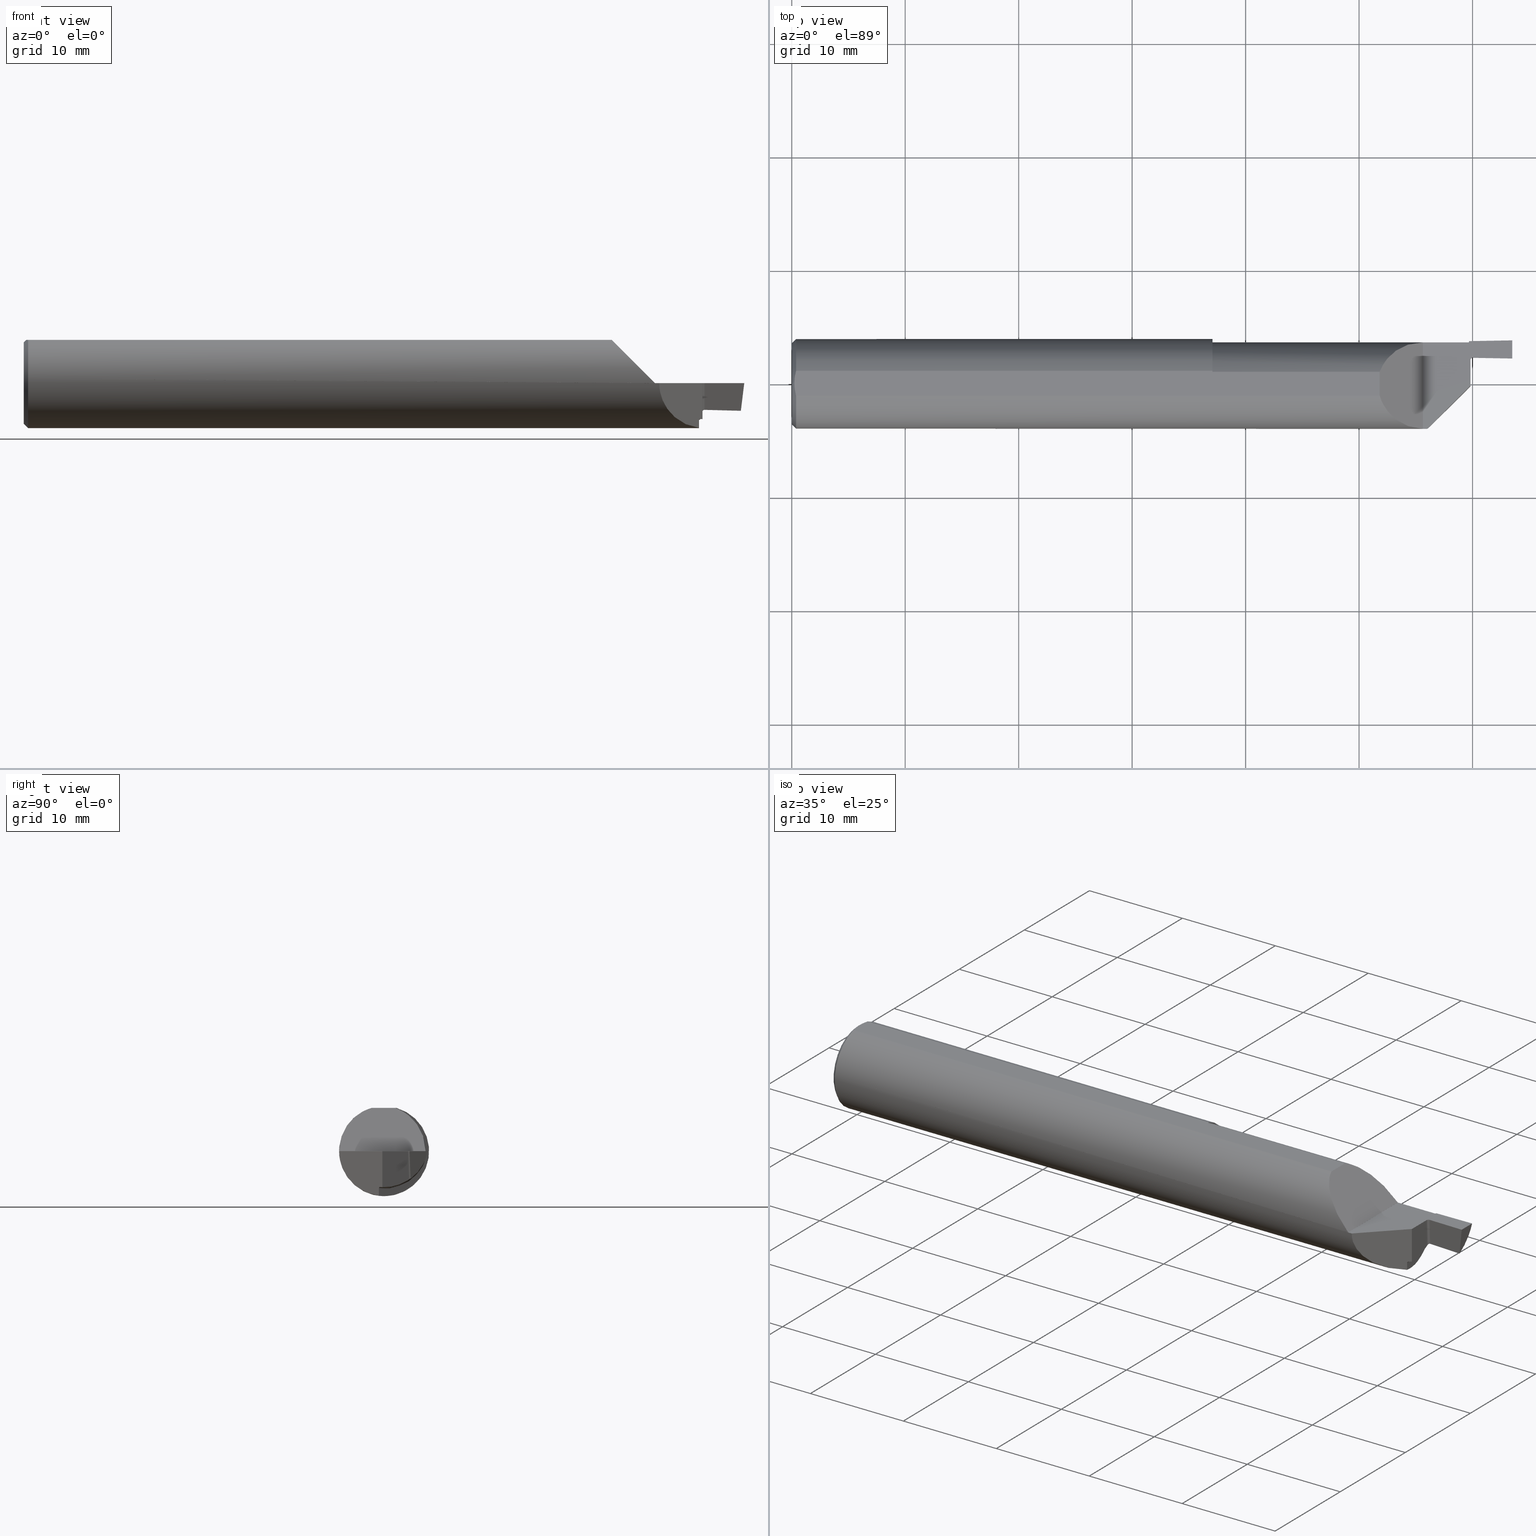
[diagram: canonical four-view strip — front | top / right | iso, engineering-drawing reading convention]
A machine part, canonical four-view strip (front | top / right | iso — engineering-drawing reading convention). The complete STEP part file that produces these views, byte-faithful:
ISO-10303-21;
HEADER;
FILE_DESCRIPTION (( 'STEP AP203' ),
    '1' );
FILE_NAME ('220082-FG312-062.STEP',
    '2024-06-10T23:05:51',
    ( '' ),
    ( '' ),
    'SwSTEP 2.0',
    'SolidWorks 2022',
    '' );
FILE_SCHEMA (( 'CONFIG_CONTROL_DESIGN' ));
ENDSEC;

DATA;
#1 = CARTESIAN_POINT ( 'NONE',  ( 2.189999999999999947, 0.1440992383597802795, 0.000000000000000000 ) ) ;
#2 = DIRECTION ( 'NONE',  ( 0.000000000000000000, 0.000000000000000000, -1.000000000000000000 ) ) ;
#3 = ORIENTED_EDGE ( 'NONE', *, *, #106, .F. ) ;
#4 =( BOUNDED_CURVE ( )  B_SPLINE_CURVE ( 3, ( #84, #338, #202, #732 ),
 .UNSPECIFIED., .F., .F. ) 
 B_SPLINE_CURVE_WITH_KNOTS ( ( 4, 4 ),
 ( 2.190606677672189750, 2.210283977091701324 ),
 .UNSPECIFIED. ) 
 CURVE ( )  GEOMETRIC_REPRESENTATION_ITEM ( )  RATIONAL_B_SPLINE_CURVE ( ( 1.000000000000000000, 0.9999677339175745416, 0.9999677339175745416, 1.000000000000000000 ) ) 
 REPRESENTATION_ITEM ( '' )  );
#5 = DIRECTION ( 'NONE',  ( 0.000000000000000000, -0.03490480639812536257, 0.9993906415863165194 ) ) ;
#6 = AXIS2_PLACEMENT_3D ( 'NONE', #680, #561, #814 ) ;
#7 = APPROVAL_PERSON_ORGANIZATION ( #136, #302, #525 ) ;
#8 = CARTESIAN_POINT ( 'NONE',  ( 2.488214817733369166, 0.09165724655014162447, -0.09598260709626578457 ) ) ;
#9 = ORIENTED_EDGE ( 'NONE', *, *, #616, .T. ) ;
#10 =( BOUNDED_CURVE ( )  B_SPLINE_CURVE ( 3, ( #87, #20, #470, #137 ),
 .UNSPECIFIED., .F., .F. ) 
 B_SPLINE_CURVE_WITH_KNOTS ( ( 4, 4 ),
 ( 0.7736950422427988361, 1.544540906567494876 ),
 .UNSPECIFIED. ) 
 CURVE ( )  GEOMETRIC_REPRESENTATION_ITEM ( )  RATIONAL_B_SPLINE_CURVE ( ( 1.000000000000000000, 0.9510930091674408837, 0.9510930091674408837, 1.000000000000000000 ) ) 
 REPRESENTATION_ITEM ( '' )  );
#11 = EDGE_CURVE ( 'NONE', #82, #506, #774, .T. ) ;
#12 = CARTESIAN_POINT ( 'NONE',  ( 1.460000000000000187, -0.2561000000000000498, 0.1500999999999999834 ) ) ;
#13 = DIRECTION ( 'NONE',  ( 0.000000000000000000, 0.000000000000000000, -1.000000000000000000 ) ) ;
#14 = ORIENTED_EDGE ( 'NONE', *, *, #764, .T. ) ;
#15 = PERSON_AND_ORGANIZATION_ROLE ( 'creator' ) ;
#16 = EDGE_CURVE ( 'NONE', #485, #509, #21, .T. ) ;
#17 = CARTESIAN_POINT ( 'NONE',  ( 2.342162489801669967, 0.03081474338877098623, -0.1530283032314129488 ) ) ;
#18 = CARTESIAN_POINT ( 'NONE',  ( 2.348588877633264183, 0.1430406856638100077, -0.02188148549019080027 ) ) ;
#19 = VERTEX_POINT ( 'NONE', #317 ) ;
#20 = CARTESIAN_POINT ( 'NONE',  ( 2.491084017247246596, 0.1235937787627423429, -0.07261485228427179417 ) ) ;
#21 = B_SPLINE_CURVE_WITH_KNOTS ( 'NONE', 3,
 ( #640, #387, #505, #777, #321, #56 ),
 .UNSPECIFIED., .F., .F.,
 ( 4, 2, 4 ),
 ( 0.000000000000000000, 0.5000000000000000000, 1.000000000000000000 ),
 .UNSPECIFIED. ) ;
#22 = DIRECTION ( 'NONE',  ( 0.1217869383157133695, -0.03676811390802550705, 0.9918750160455352960 ) ) ;
#23 = EDGE_CURVE ( 'NONE', #597, #685, #726, .T. ) ;
#24 = VERTEX_POINT ( 'NONE', #770 ) ;
#25 = PERSON_AND_ORGANIZATION ( #512, #315 ) ;
#26 = DIRECTION ( 'NONE',  ( -0.000000000000000000, 1.000000000000000000, 0.000000000000000000 ) ) ;
#27 = DIRECTION ( 'NONE',  ( -1.000000000000000000, -0.000000000000000000, -0.000000000000000000 ) ) ;
#28 = EDGE_CURVE ( 'NONE', #597, #485, #180, .T. ) ;
#29 = VERTEX_POINT ( 'NONE', #250 ) ;
#30 = CARTESIAN_POINT ( 'NONE',  ( 2.347930990700843434, -0.01316900929915658727, -0.1243742240218995432 ) ) ;
#31 = ORIENTED_EDGE ( 'NONE', *, *, #381, .F. ) ;
#32 = DATE_AND_TIME ( #720, #221 ) ;
#33 = CARTESIAN_POINT ( 'NONE',  ( 2.342443959369012507, 0.01468936267546636261, -0.1562754114998405885 ) ) ;
#34 = CARTESIAN_POINT ( 'NONE',  ( 0.01156122974740472244, -0.02873113156979012484, 0.1500999999999999279 ) ) ;
#35 = CIRCLE ( 'NONE', #118, 0.008000000000000024453 ) ;
#36 = ORIENTED_EDGE ( 'NONE', *, *, #429, .T. ) ;
#37 = EDGE_CURVE ( 'NONE', #340, #82, #560, .T. ) ;
#38 = FACE_OUTER_BOUND ( 'NONE', #472, .T. ) ;
#39 = DIRECTION ( 'NONE',  ( 0.000000000000000000, -1.000000000000000000, 0.000000000000000000 ) ) ;
#40 = ORIENTED_EDGE ( 'NONE', *, *, #79, .F. ) ;
#41 = DIRECTION ( 'NONE',  ( -1.000000000000000000, 0.000000000000000000, -0.000000000000000000 ) ) ;
#42 = ADVANCED_FACE ( 'NONE', ( #695 ), #169, .F. ) ;
#43 = CARTESIAN_POINT ( 'NONE',  ( 2.342162489801669967, 0.03081474338877098623, -0.1530283032314129488 ) ) ;
#44 = ORIENTED_EDGE ( 'NONE', *, *, #111, .F. ) ;
#45 = CARTESIAN_POINT ( 'NONE',  ( 2.343016020190010540, -0.01808397980998952687, -0.1550489589588781580 ) ) ;
#46 = CARTESIAN_POINT ( 'NONE',  ( 0.000000000000000000, 0.04286257108480545641, 0.1500999999999999834 ) ) ;
#47 = ORIENTED_EDGE ( 'NONE', *, *, #70, .T. ) ;
#48 = PERSON_AND_ORGANIZATION_ROLE ( 'creator' ) ;
#49 = CARTESIAN_POINT ( 'NONE',  ( 0.000000000000000000, 0.000000000000000000, 0.000000000000000000 ) ) ;
#50 = ORIENTED_EDGE ( 'NONE', *, *, #703, .F. ) ;
#51 = EDGE_CURVE ( 'NONE', #771, #800, #238, .T. ) ;
#52 = FACE_OUTER_BOUND ( 'NONE', #707, .T. ) ;
#53 = CARTESIAN_POINT ( 'NONE',  ( 2.039999999999999591, 0.03950672882812752973, 0.1500999999999999834 ) ) ;
#54 = ORIENTED_EDGE ( 'NONE', *, *, #362, .T. ) ;
#55 = CARTESIAN_POINT ( 'NONE',  ( 0.000000000000000000, 1.819825143532968629E-17, 0.1411000000000003085 ) ) ;
#56 = CARTESIAN_POINT ( 'NONE',  ( 2.355001483111417659, 0.08263908556484486634, -0.0002790132549053328374 ) ) ;
#57 = ORIENTED_EDGE ( 'NONE', *, *, #373, .F. ) ;
#58 = VECTOR ( 'NONE', #753, 39.37007874015748143 ) ;
#59 = CIRCLE ( 'NONE', #751, 0.1549999999999999711 ) ;
#60 = CARTESIAN_POINT ( 'NONE',  ( 2.345727374797673015, -0.01537262520232698243, -0.1245155767697419535 ) ) ;
#61 = CARTESIAN_POINT ( 'NONE',  ( 2.350000000000000089, 0.1484809786205498194, 0.000000000000000000 ) ) ;
#62 = FACE_OUTER_BOUND ( 'NONE', #673, .T. ) ;
#63 = CARTESIAN_POINT ( 'NONE',  ( 0.000000000000000000, 0.000000000000000000, 0.000000000000000000 ) ) ;
#64 = ADVANCED_FACE ( 'NONE', ( #248 ), #326, .T. ) ;
#65 = VERTEX_POINT ( 'NONE', #189 ) ;
#66 = ORIENTED_EDGE ( 'NONE', *, *, #116, .F. ) ;
#67 = CYLINDRICAL_SURFACE ( 'NONE', #590, 0.1499999999999999667 ) ;
#68 = PLANE ( 'NONE',  #776 ) ;
#69 = CARTESIAN_POINT ( 'NONE',  ( 2.189999999999999947, 0.1440992071097771665, 9.999999999993541345E-05 ) ) ;
#70 = EDGE_CURVE ( 'NONE', #24, #204, #823, .T. ) ;
#71 = ORIENTED_EDGE ( 'NONE', *, *, #653, .F. ) ;
#72 = B_SPLINE_CURVE_WITH_KNOTS ( 'NONE', 3,
 ( #665, #721, #74, #727, #147, #661 ),
 .UNSPECIFIED., .F., .F.,
 ( 4, 2, 4 ),
 ( 0.02300346262467809280, 0.02310447887316030569, 0.02320549512164252204 ),
 .UNSPECIFIED. ) ;
#73 = VECTOR ( 'NONE', #274, 39.37007874015748143 ) ;
#74 = CARTESIAN_POINT ( 'NONE',  ( 2.355003523125127174, 0.08272775551729248666, -0.005613609509453503996 ) ) ;
#75 = AXIS2_PLACEMENT_3D ( 'NONE', #206, #655, #713 ) ;
#76 = CARTESIAN_POINT ( 'NONE',  ( 2.342692876529412604, 0.0004289081069179440423, 0.02500000000000001180 ) ) ;
#77 = EDGE_LOOP ( 'NONE', ( #689, #806, #748, #637, #44 ) ) ;
#78 = APPROVAL_STATUS ( 'not_yet_approved' ) ;
#79 = EDGE_CURVE ( 'NONE', #741, #578, #325, .T. ) ;
#80 = DIRECTION ( 'NONE',  ( -0.000000000000000000, -0.000000000000000000, 1.000000000000000000 ) ) ;
#81 = CARTESIAN_POINT ( 'NONE',  ( 2.350000000000000089, 0.1469025436341844515, -0.008005235270070444609 ) ) ;
#82 = VERTEX_POINT ( 'NONE', #308 ) ;
#83 = EDGE_CURVE ( 'NONE', #432, #65, #367, .T. ) ;
#84 = CARTESIAN_POINT ( 'NONE',  ( 2.355060984628547960, 0.08347528194964484727, -0.1000647833707343087 ) ) ;
#85 = CARTESIAN_POINT ( 'NONE',  ( 0.000000000000000000, 0.000000000000000000, 0.000000000000000000 ) ) ;
#86 = EDGE_LOOP ( 'NONE', ( #237, #322, #170 ) ) ;
#87 = CARTESIAN_POINT ( 'NONE',  ( 2.488214817733369166, 0.09165724655014162447, -0.09598260709626578457 ) ) ;
#88 = EDGE_CURVE ( 'NONE', #754, #791, #428, .T. ) ;
#89 = AXIS2_PLACEMENT_3D ( 'NONE', #63, #188, #242 ) ;
#90 = DIRECTION ( 'NONE',  ( -0.9998476951563914916, -0.01745240643726934937, 0.000000000000000000 ) ) ;
#91 = ORIENTED_EDGE ( 'NONE', *, *, #638, .F. ) ;
#92 = COORDINATED_UNIVERSAL_TIME_OFFSET ( 8, 0, .BEHIND. ) ;
#93 = CARTESIAN_POINT ( 'NONE',  ( 2.354999999999999982, 0.08248936363059371224, -0.1560999999999999888 ) ) ;
#94 = MANIFOLD_SOLID_BREP ( 'Cut-Revolve1', #518 ) ;
#95 = DIRECTION ( 'NONE',  ( 1.000000000000000000, -4.076669232118371430E-17, 0.000000000000000000 ) ) ;
#96 = ORIENTED_EDGE ( 'NONE', *, *, #11, .T. ) ;
#97 = CARTESIAN_POINT ( 'NONE',  ( 2.347692115005194591, 0.0005161701391042931202, 0.02500000000000001180 ) ) ;
#98 = FACE_OUTER_BOUND ( 'NONE', #360, .T. ) ;
#99 = ORIENTED_EDGE ( 'NONE', *, *, #563, .T. ) ;
#100 = EDGE_CURVE ( 'NONE', #278, #771, #473, .T. ) ;
#101 = DIRECTION ( 'NONE',  ( -0.0006090802009083879243, -0.03489418134011375294, 0.9993908270190957621 ) ) ;
#102 = CYLINDRICAL_SURFACE ( 'NONE', #668, 0.1600000000000000588 ) ;
#103 = AXIS2_PLACEMENT_3D ( 'NONE', #76, #90, #271 ) ;
#104 = EDGE_LOOP ( 'NONE', ( #524, #14, #438, #758, #146, #723, #555, #162, #290, #701, #200 ) ) ;
#105 = AXIS2_PLACEMENT_3D ( 'NONE', #201, #256, #443 ) ;
#106 = EDGE_CURVE ( 'NONE', #178, #514, #523, .T. ) ;
#107 = CARTESIAN_POINT ( 'NONE',  ( 2.488214817733369166, 0.09165724655014162447, -0.09598260709626578457 ) ) ;
#108 = DIRECTION ( 'NONE',  ( 1.000000000000000000, 0.000000000000000000, 0.000000000000000000 ) ) ;
#109 = ORIENTED_EDGE ( 'NONE', *, *, #749, .T. ) ;
#110 = LINE ( 'NONE', #167, #548 ) ;
#111 = EDGE_CURVE ( 'NONE', #190, #340, #276, .T. ) ;
#112 = DIRECTION ( 'NONE',  ( 0.000000000000000000, 0.000000000000000000, -1.000000000000000000 ) ) ;
#113 = ORIENTED_EDGE ( 'NONE', *, *, #28, .F. ) ;
#114 = DATE_AND_TIME ( #269, #408 ) ;
#115 = CARTESIAN_POINT ( 'NONE',  ( 0.01499999999999970281, 0.000000000000000000, -0.1560999999999999888 ) ) ;
#116 = EDGE_CURVE ( 'NONE', #427, #174, #216, .T. ) ;
#117 = EDGE_LOOP ( 'NONE', ( #54, #40, #364, #715, #153, #678, #628, #529, #663, #783 ) ) ;
#118 = AXIS2_PLACEMENT_3D ( 'NONE', #121, #828, #445 ) ;
#119 = APPROVAL_PERSON_ORGANIZATION ( #345, #565, #352 ) ;
#120 = DIRECTION ( 'NONE',  ( 0.000000000000000000, -1.000000000000000000, 0.000000000000000000 ) ) ;
#121 = CARTESIAN_POINT ( 'NONE',  ( 2.362999999999999989, 0.08248936363059371224, 0.000000000000000000 ) ) ;
#122 = CARTESIAN_POINT ( 'NONE',  ( 0.01499999999999970281, 0.04286257108480545641, 0.1500999999999999834 ) ) ;
#123 = ORIENTED_EDGE ( 'NONE', *, *, #526, .F. ) ;
#124 = DIRECTION ( 'NONE',  ( -1.000000000000000000, 0.000000000000000000, -0.000000000000000000 ) ) ;
#125 = EDGE_LOOP ( 'NONE', ( #623, #293, #66 ) ) ;
#126 = AXIS2_PLACEMENT_3D ( 'NONE', #586, #452, #710 ) ;
#127 = EDGE_CURVE ( 'NONE', #374, #29, #572, .T. ) ;
#128 = CARTESIAN_POINT ( 'NONE',  ( 2.189999999999999947, -0.1560999679692472164, 9.999999999982123341E-05 ) ) ;
#129 = CC_DESIGN_PERSON_AND_ORGANIZATION_ASSIGNMENT ( #196, #15, ( #157 ) ) ;
#130 = CARTESIAN_POINT ( 'NONE',  ( 2.355060984628547960, 0.08347528194964484727, -0.1000647833707343087 ) ) ;
#131 = APPROVAL_ROLE ( '' ) ;
#132 = B_SPLINE_CURVE_WITH_KNOTS ( 'NONE', 3,
 ( #177, #747, #164, #34, #225, #496 ),
 .UNSPECIFIED., .F., .F.,
 ( 4, 2, 4 ),
 ( 0.004962684357525391429, 0.005507153342650035824, 0.006051622327774681086 ),
 .UNSPECIFIED. ) ;
#133 = FACE_OUTER_BOUND ( 'NONE', #711, .T. ) ;
#134 = CARTESIAN_POINT ( 'NONE',  ( 2.347692115005194591, 0.0005161701391042951802, 0.02500000000000001180 ) ) ;
#135 = ORIENTED_EDGE ( 'NONE', *, *, #708, .T. ) ;
#136 = PERSON_AND_ORGANIZATION ( #512, #315 ) ;
#137 = CARTESIAN_POINT ( 'NONE',  ( 2.500000000000000000, 0.1510992383597803135, 3.841661241090370459E-17 ) ) ;
#138 = FACE_OUTER_BOUND ( 'NONE', #125, .T. ) ;
#139 = EDGE_CURVE ( 'NONE', #190, #488, #258, .T. ) ;
#140 = ORIENTED_EDGE ( 'NONE', *, *, #638, .T. ) ;
#141 = CARTESIAN_POINT ( 'NONE',  ( 2.662644138979457509, 0.006013678166844136329, 0.02500000000000001180 ) ) ;
#142 = AXIS2_PLACEMENT_3D ( 'NONE', #49, #820, #253 ) ;
#143 = CARTESIAN_POINT ( 'NONE',  ( 2.354999999999999982, 0.08248936363059371224, 0.000000000000000000 ) ) ;
#144 = VECTOR ( 'NONE', #687, 39.37007874015748143 ) ;
#145 = CARTESIAN_POINT ( 'NONE',  ( 2.354999999999999982, -0.006099999999999987377, 0.000000000000000000 ) ) ;
#146 = ORIENTED_EDGE ( 'NONE', *, *, #83, .F. ) ;
#147 = CARTESIAN_POINT ( 'NONE',  ( 2.355003195454504095, 0.08273494111970873532, -0.001601214643522512731 ) ) ;
#148 = CARTESIAN_POINT ( 'NONE',  ( 2.349888618612618441, 0.1455418331945640964, -0.01364428855042609974 ) ) ;
#149 = ORIENTED_EDGE ( 'NONE', *, *, #277, .F. ) ;
#150 = EDGE_CURVE ( 'NONE', #29, #660, #155, .T. ) ;
#151 = LINE ( 'NONE', #467, #812 ) ;
#152 = CARTESIAN_POINT ( 'NONE',  ( 2.343016020190010540, -0.01808397980998952687, -0.1550489589588781580 ) ) ;
#153 = ORIENTED_EDGE ( 'NONE', *, *, #498, .T. ) ;
#154 = FACE_OUTER_BOUND ( 'NONE', #745, .T. ) ;
#155 = CIRCLE ( 'NONE', #811, 0.1560999999999999888 ) ;
#156 = DIRECTION ( 'NONE',  ( 0.000000000000000000, -1.000000000000000000, 0.000000000000000000 ) ) ;
#157 = PRODUCT_DEFINITION ( 'UNKNOWN', '', #288, #259 ) ;
#158 = ORIENTED_EDGE ( 'NONE', *, *, #165, .T. ) ;
#159 = CARTESIAN_POINT ( 'NONE',  ( 2.350000000000000089, -0.01590076164021980709, 0.000000000000000000 ) ) ;
#160 = FACE_OUTER_BOUND ( 'NONE', #255, .T. ) ;
#161 = ADVANCED_FACE ( 'NONE', ( #138 ), #540, .F. ) ;
#162 = ORIENTED_EDGE ( 'NONE', *, *, #286, .T. ) ;
#163 = CARTESIAN_POINT ( 'NONE',  ( 2.355060984628547960, 0.08347528194964484727, -0.1000647833707343087 ) ) ;
#164 = CARTESIAN_POINT ( 'NONE',  ( 0.009526811708237869006, -0.01443825677426632814, 0.1500999999999999834 ) ) ;
#165 = EDGE_CURVE ( 'NONE', #685, #427, #339, .T. ) ;
#166 = ORIENTED_EDGE ( 'NONE', *, *, #310, .F. ) ;
#167 = CARTESIAN_POINT ( 'NONE',  ( 2.355239968482531143, 0.09623210143010579865, -0.3937450271037417626 ) ) ;
#168 = LINE ( 'NONE', #797, #477 ) ;
#169 = TOROIDAL_SURFACE ( 'NONE', #126, 0.1630000000000001170, 0.002999999999999820952 ) ;
#170 = ORIENTED_EDGE ( 'NONE', *, *, #150, .T. ) ;
#171 = CC_DESIGN_APPROVAL ( #798, ( #157 ) ) ;
#172 = CARTESIAN_POINT ( 'NONE',  ( 2.342162489801669967, 0.03081474338877098623, -0.1530283032314129488 ) ) ;
#173 = DIRECTION ( 'NONE',  ( -1.000000000000000000, 0.000000000000000000, -0.000000000000000000 ) ) ;
#174 = VERTEX_POINT ( 'NONE', #336 ) ;
#175 = DATE_AND_TIME ( #756, #479 ) ;
#176 = APPLICATION_CONTEXT ( 'configuration controlled 3d designs of mechanical parts and assemblies' ) ;
#177 = CARTESIAN_POINT ( 'NONE',  ( 0.008999999999998765932, 6.845491512164019265E-17, 0.1500999999999999834 ) ) ;
#178 = VERTEX_POINT ( 'NONE', #199 ) ;
#179 = CARTESIAN_POINT ( 'NONE',  ( 2.343016020190010096, -0.01808397980998953034, -0.1273266002064751268 ) ) ;
#180 = LINE ( 'NONE', #441, #762 ) ;
#181 = VECTOR ( 'NONE', #603, 39.37007874015748143 ) ;
#182 = CARTESIAN_POINT ( 'NONE',  ( 2.340324171265558029, 0.1361319417878201210, -0.04986037593482096908 ) ) ;
#183 = DIRECTION ( 'NONE',  ( 0.01745240643727014734, -0.9998476951563916026, 0.000000000000000000 ) ) ;
#184 = VERTEX_POINT ( 'NONE', #390 ) ;
#185 = PLANE ( 'NONE',  #692 ) ;
#186 = CARTESIAN_POINT ( 'NONE',  ( 2.354999999999999982, 0.08282183858202327165, -0.1004949110807292212 ) ) ;
#187 = ORIENTED_EDGE ( 'NONE', *, *, #599, .F. ) ;
#188 = DIRECTION ( 'NONE',  ( 1.000000000000000000, 0.000000000000000000, 0.000000000000000000 ) ) ;
#189 = CARTESIAN_POINT ( 'NONE',  ( 2.189999999999999947, -0.1560999999999999888, 0.000000000000000000 ) ) ;
#190 = VERTEX_POINT ( 'NONE', #657 ) ;
#191 = APPLICATION_PROTOCOL_DEFINITION ( 'international standard', 'config_control_design', 1994, #176 ) ;
#192 = AXIS2_PLACEMENT_3D ( 'NONE', #577, #761, #435 ) ;
#193 = PLANE ( 'NONE',  #406 ) ;
#194 = DIRECTION ( 'NONE',  ( -0.0006090802009083879243, -0.03489418134011375294, 0.9993908270190957621 ) ) ;
#195 = ORIENTED_EDGE ( 'NONE', *, *, #616, .F. ) ;
#196 = PERSON_AND_ORGANIZATION ( #512, #315 ) ;
#197 = ADVANCED_FACE ( 'NONE', ( #596 ), #267, .F. ) ;
#198 = CARTESIAN_POINT ( 'NONE',  ( 2.350000000000000089, 0.1940992383597803239, 0.000000000000000000 ) ) ;
#199 = CARTESIAN_POINT ( 'NONE',  ( 2.354999999999999982, -0.006099999999999987377, 0.000000000000000000 ) ) ;
#200 = ORIENTED_EDGE ( 'NONE', *, *, #150, .F. ) ;
#201 = CARTESIAN_POINT ( 'NONE',  ( 2.189999999999999947, 0.2560999999999999943, 9.999999999993541345E-05 ) ) ;
#202 = CARTESIAN_POINT ( 'NONE',  ( 2.355060317594049657, 0.08511078650266964973, -0.09897029998855627619 ) ) ;
#203 = CARTESIAN_POINT ( 'NONE',  ( 2.260341737083758851, -0.1007582629162410287, -0.1454063268732586067 ) ) ;
#204 = VERTEX_POINT ( 'NONE', #530 ) ;
#205 = PERSON_AND_ORGANIZATION_ROLE ( 'classification_officer' ) ;
#206 = CARTESIAN_POINT ( 'NONE',  ( 2.346999999999999975, 0.1470992383597802822, 0.000000000000000000 ) ) ;
#207 = CIRCLE ( 'NONE', #682, 0.1630000000000001170 ) ;
#208 = FACE_OUTER_BOUND ( 'NONE', #448, .T. ) ;
#209 = VERTEX_POINT ( 'NONE', #332 ) ;
#210 = CARTESIAN_POINT ( 'NONE',  ( 2.355059976755246698, 0.08592038228011614209, -0.09841104494638222566 ) ) ;
#211 = DIRECTION ( 'NONE',  ( 1.000000000000000000, 0.000000000000000000, 0.000000000000000000 ) ) ;
#212 = ORIENTED_EDGE ( 'NONE', *, *, #88, .F. ) ;
#213 = EDGE_CURVE ( 'NONE', #333, #514, #412, .T. ) ;
#214 = LINE ( 'NONE', #12, #181 ) ;
#215 = CC_DESIGN_PERSON_AND_ORGANIZATION_ASSIGNMENT ( #25, #205, ( #260 ) ) ;
#216 = LINE ( 'NONE', #672, #273 ) ;
#217 = ORIENTED_EDGE ( 'NONE', *, *, #106, .T. ) ;
#218 = PLANE ( 'NONE',  #450 ) ;
#219 = AXIS2_PLACEMENT_3D ( 'NONE', #516, #825, #120 ) ;
#220 = DIRECTION ( 'NONE',  ( 0.000000000000000000, 0.000000000000000000, 1.000000000000000000 ) ) ;
#221 = LOCAL_TIME ( 16, 5, 51.00000000000000000, #724 ) ;
#222 = ORIENTED_EDGE ( 'NONE', *, *, #782, .T. ) ;
#223 = CARTESIAN_POINT ( 'NONE',  ( 2.660062893257208128, 0.1538931465541809873, 0.000000000000000000 ) ) ;
#224 = EDGE_CURVE ( 'NONE', #791, #184, #581, .T. ) ;
#225 = CARTESIAN_POINT ( 'NONE',  ( 0.01308010236197408062, -0.03587054952121924989, 0.1500999999999999834 ) ) ;
#226 = ORIENTED_EDGE ( 'NONE', *, *, #348, .T. ) ;
#227 = DIRECTION ( 'NONE',  ( 0.7071067811865483499, 8.659560562354922997E-17, 0.7071067811865466846 ) ) ;
#228 = CARTESIAN_POINT ( 'NONE',  ( 2.352640141506401772, -0.008459858493598407594, -0.1247440597853087252 ) ) ;
#229 = ORIENTED_EDGE ( 'NONE', *, *, #456, .F. ) ;
#230 = DIRECTION ( 'NONE',  ( 0.000000000000000000, 0.000000000000000000, -1.000000000000000000 ) ) ;
#231 = VECTOR ( 'NONE', #355, 39.37007874015748143 ) ;
#232 = ORIENTED_EDGE ( 'NONE', *, *, #100, .F. ) ;
#233 = AXIS2_PLACEMENT_3D ( 'NONE', #702, #584, #392 ) ;
#234 = ADVANCED_FACE ( 'NONE', ( #208 ), #299, .T. ) ;
#235 = DIRECTION ( 'NONE',  ( -0.9998476951563912696, 0.01745240643727508784, -0.000000000000000000 ) ) ;
#236 = CARTESIAN_POINT ( 'NONE',  ( 2.117630523791210084, -0.1560536069884282118, 0.07246947620879010121 ) ) ;
#237 = ORIENTED_EDGE ( 'NONE', *, *, #553, .T. ) ;
#238 =( BOUNDED_CURVE ( )  B_SPLINE_CURVE ( 3, ( #765, #826, #517, #61 ),
 .UNSPECIFIED., .F., .T. ) 
 B_SPLINE_CURVE_WITH_KNOTS ( ( 4, 4 ),
 ( 2.919742404573593131, 2.974144574370104266 ),
 .UNSPECIFIED. ) 
 CURVE ( )  GEOMETRIC_REPRESENTATION_ITEM ( )  RATIONAL_B_SPLINE_CURVE ( ( 1.000000000000000000, 0.9997533822000376214, 0.9997533822000376214, 1.000000000000000000 ) ) 
 REPRESENTATION_ITEM ( '' )  );
#239 = CARTESIAN_POINT ( 'NONE',  ( 2.344620239223516034, 0.1423154475645168338, -0.02382507295451149684 ) ) ;
#240 = EDGE_LOOP ( 'NONE', ( #803, #544, #497 ) ) ;
#241 = ADVANCED_FACE ( 'NONE', ( #728 ), #343, .T. ) ;
#242 = DIRECTION ( 'NONE',  ( 0.000000000000000000, 0.000000000000000000, -1.000000000000000000 ) ) ;
#243 = VERTEX_POINT ( 'NONE', #543 ) ;
#244 = ORIENTED_EDGE ( 'NONE', *, *, #277, .T. ) ;
#245 = VECTOR ( 'NONE', #407, 39.37007874015748143 ) ;
#246 = DIRECTION ( 'NONE',  ( 4.076669232118371430E-17, 1.000000000000000000, 0.000000000000000000 ) ) ;
#247 = ADVANCED_FACE ( 'NONE', ( #98 ), #484, .F. ) ;
#248 = FACE_OUTER_BOUND ( 'NONE', #810, .T. ) ;
#249 = CARTESIAN_POINT ( 'NONE',  ( 2.341229560585753600, 0.1404129330932531172, -0.03422624432314345932 ) ) ;
#250 = CARTESIAN_POINT ( 'NONE',  ( 1.460000000000000187, 0.03081474338883832820, -0.1530283032313958513 ) ) ;
#251 = EDGE_CURVE ( 'NONE', #82, #660, #418, .T. ) ;
#252 = ORIENTED_EDGE ( 'NONE', *, *, #653, .T. ) ;
#253 = DIRECTION ( 'NONE',  ( 0.000000000000000000, 0.000000000000000000, -1.000000000000000000 ) ) ;
#254 = CARTESIAN_POINT ( 'NONE',  ( 0.008999999999998765932, 6.845491512164019265E-17, 0.1500999999999999834 ) ) ;
#255 = EDGE_LOOP ( 'NONE', ( #794, #411, #551, #96, #244, #123, #9 ) ) ;
#256 = DIRECTION ( 'NONE',  ( 0.7071067811865462405, -0.000000000000000000, 0.7071067811865487940 ) ) ;
#257 = EDGE_CURVE ( 'NONE', #741, #432, #613, .T. ) ;
#258 = CIRCLE ( 'NONE', #328, 0.1411000000000003085 ) ;
#259 = DESIGN_CONTEXT ( 'detailed design', #176, 'design' ) ;
#260 = SECURITY_CLASSIFICATION ( '', '', #730 ) ;
#261 = DIRECTION ( 'NONE',  ( 0.000000000000000000, -1.000000000000000000, 0.000000000000000000 ) ) ;
#262 = CC_DESIGN_PERSON_AND_ORGANIZATION_ASSIGNMENT ( #630, #48, ( #288 ) ) ;
#263 = CARTESIAN_POINT ( 'NONE',  ( 2.501506277050174365, 0.1560999999999999888, 0.01226764211312855388 ) ) ;
#264 = VERTEX_POINT ( 'NONE', #690 ) ;
#265 = APPROVAL_STATUS ( 'not_yet_approved' ) ;
#266 = CARTESIAN_POINT ( 'NONE',  ( 2.039999999999999591, 0.03950672882812752973, 0.1500999999999999834 ) ) ;
#267 = PLANE ( 'NONE',  #103 ) ;
#268 = ORIENTED_EDGE ( 'NONE', *, *, #429, .F. ) ;
#269 = CALENDAR_DATE ( 2024, 10, 6 ) ;
#270 = CARTESIAN_POINT ( 'NONE',  ( 2.204999999999999627, -0.1560999999999999888, 0.000000000000000000 ) ) ;
#271 = DIRECTION ( 'NONE',  ( 0.01745240643726934937, -0.9998476951563914916, 0.000000000000000000 ) ) ;
#272 = ORIENTED_EDGE ( 'NONE', *, *, #576, .T. ) ;
#273 = VECTOR ( 'NONE', #528, 39.37007874015748143 ) ;
#274 = DIRECTION ( 'NONE',  ( -1.000000000000000000, -0.000000000000000000, -0.000000000000000000 ) ) ;
#275 = VECTOR ( 'NONE', #227, 39.37007874015748143 ) ;
#276 = LINE ( 'NONE', #399, #353 ) ;
#277 = EDGE_CURVE ( 'NONE', #506, #209, #132, .T. ) ;
#278 = VERTEX_POINT ( 'NONE', #292 ) ;
#279 = CARTESIAN_POINT ( 'NONE',  ( 2.358595032331523900, 0.09271036054434736440, -0.09349567900326506698 ) ) ;
#280 = DIRECTION ( 'NONE',  ( -1.000000000000000000, 4.076669232118371430E-17, -0.000000000000000000 ) ) ;
#281 = VERTEX_POINT ( 'NONE', #43 ) ;
#282 = EDGE_CURVE ( 'NONE', #337, #800, #688, .T. ) ;
#283 = DIRECTION ( 'NONE',  ( 0.000000000000000000, -1.000000000000000000, 0.000000000000000000 ) ) ;
#284 = CARTESIAN_POINT ( 'NONE',  ( 2.346999999999999975, 0.1440992383597803350, 0.000000000000000000 ) ) ;
#285 = ORIENTED_EDGE ( 'NONE', *, *, #286, .F. ) ;
#286 = EDGE_CURVE ( 'NONE', #209, #340, #750, .T. ) ;
#287 = CARTESIAN_POINT ( 'NONE',  ( 2.350000000000000089, 0.1469025436341844515, -0.008005235270070444609 ) ) ;
#288 = PRODUCT_DEFINITION_FORMATION_WITH_SPECIFIED_SOURCE ( 'ANY', '', #615, .NOT_KNOWN. ) ;
#289 = CARTESIAN_POINT ( 'NONE',  ( 2.189999999999999947, -0.04286257108480570621, 9.999999999993541345E-05 ) ) ;
#290 = ORIENTED_EDGE ( 'NONE', *, *, #37, .T. ) ;
#291 = DIRECTION ( 'NONE',  ( 0.000000000000000000, 0.000000000000000000, -1.000000000000000000 ) ) ;
#292 = CARTESIAN_POINT ( 'NONE',  ( 2.346999999999999975, 0.1422830262889950570, -0.02403932687005251589 ) ) ;
#293 = ORIENTED_EDGE ( 'NONE', *, *, #591, .T. ) ;
#294 = DIRECTION ( 'NONE',  ( -1.000000000000000000, 4.076669232118371430E-17, 0.000000000000000000 ) ) ;
#295 = LINE ( 'NONE', #622, #378 ) ;
#296 = ORIENTED_EDGE ( 'NONE', *, *, #677, .T. ) ;
#297 = DIRECTION ( 'NONE',  ( 0.01745240643726908916, -0.9998476951563914916, 0.000000000000000000 ) ) ;
#298 = DIRECTION ( 'NONE',  ( 0.000000000000000000, 0.000000000000000000, -1.000000000000000000 ) ) ;
#299 = CONICAL_SURFACE ( 'NONE', #602, 0.1411000000000003085, 0.7853981633974471688 ) ;
#300 = ORIENTED_EDGE ( 'NONE', *, *, #79, .T. ) ;
#301 = B_SPLINE_CURVE_WITH_KNOTS ( 'NONE', 3,
 ( #377, #179, #642, #60, #316, #575 ),
 .UNSPECIFIED., .F., .F.,
 ( 4, 2, 4 ),
 ( 0.000000000000000000, 0.0001172704188661770341, 0.0002345408377323540683 ),
 .UNSPECIFIED. ) ;
#302 = APPROVAL ( #265, 'UNSPECIFIED' ) ;
#303 = PERSON_AND_ORGANIZATION ( #512, #315 ) ;
#304 = FACE_OUTER_BOUND ( 'NONE', #729, .T. ) ;
#305 = ORIENTED_EDGE ( 'NONE', *, *, #531, .T. ) ;
#306 = EDGE_CURVE ( 'NONE', #65, #476, #295, .T. ) ;
#307 = CARTESIAN_POINT ( 'NONE',  ( 2.344147063284117927, 0.1422359684611269048, -0.02435196038416492792 ) ) ;
#308 = CARTESIAN_POINT ( 'NONE',  ( 0.01499999999999970281, 0.04286257108480545641, 0.1500999999999999834 ) ) ;
#309 = ORIENTED_EDGE ( 'NONE', *, *, #739, .F. ) ;
#310 = EDGE_CURVE ( 'NONE', #476, #368, #480, .T. ) ;
#311 = CARTESIAN_POINT ( 'NONE',  ( 2.341557387653868894, 0.1408919795844052469, -0.03195653890240501838 ) ) ;
#312 = PRODUCT_RELATED_PRODUCT_CATEGORY ( 'detail', '', ( #615 ) ) ;
#313 = CARTESIAN_POINT ( 'NONE',  ( 2.446019584824926429, 0.09235700504162877578, -0.09493004038341684714 ) ) ;
#314 = ORIENTED_EDGE ( 'NONE', *, *, #456, .T. ) ;
#315 = ORGANIZATION ( 'UNSPECIFIED', 'UNSPECIFIED', '' ) ;
#316 = CARTESIAN_POINT ( 'NONE',  ( 2.346837340639838843, -0.01426265936016121380, -0.1242757763077460831 ) ) ;
#317 = CARTESIAN_POINT ( 'NONE',  ( 2.354999999999999982, -0.006099999999999987377, -0.1248483765713252619 ) ) ;
#318 = ORIENTED_EDGE ( 'NONE', *, *, #698, .F. ) ;
#319 =( LENGTH_UNIT ( ) NAMED_UNIT ( * ) SI_UNIT ( $, .METRE. ) );
#320 = CARTESIAN_POINT ( 'NONE',  ( 2.363139705841341254, 0.09048814368041351031, -6.402768735150616918E-18 ) ) ;
#321 = CARTESIAN_POINT ( 'NONE',  ( 2.355039367740885847, 0.08473098973616786933, -0.0002059503887033049677 ) ) ;
#322 = ORIENTED_EDGE ( 'NONE', *, *, #127, .T. ) ;
#323 = CC_DESIGN_PERSON_AND_ORGANIZATION_ASSIGNMENT ( #303, #817, ( #288 ) ) ;
#324 = CARTESIAN_POINT ( 'NONE',  ( 2.346405711171946518, 0.1422911514515489140, -0.02398586160482895149 ) ) ;
#325 =( BOUNDED_CURVE ( )  B_SPLINE_CURVE ( 3, ( #69, #372, #636, #53 ),
 .UNSPECIFIED., .F., .T. ) 
 B_SPLINE_CURVE_WITH_KNOTS ( ( 4, 4 ),
 ( 4.713013980425380112, 5.929564525929065688 ),
 .UNSPECIFIED. ) 
 CURVE ( )  GEOMETRIC_REPRESENTATION_ITEM ( )  RATIONAL_B_SPLINE_CURVE ( ( 1.000000000000000000, 0.8804232255846621280, 0.8804232255846621280, 1.000000000000000000 ) ) 
 REPRESENTATION_ITEM ( '' )  );
#326 = PLANE ( 'NONE',  #533 ) ;
#327 = PERSON_AND_ORGANIZATION_ROLE ( 'design_owner' ) ;
#328 = AXIS2_PLACEMENT_3D ( 'NONE', #536, #666, #13 ) ;
#329 = AXIS2_PLACEMENT_3D ( 'NONE', #740, #112, #173 ) ;
#330 = AXIS2_PLACEMENT_3D ( 'NONE', #361, #624, #230 ) ;
#331 = LINE ( 'NONE', #143, #736 ) ;
#332 = CARTESIAN_POINT ( 'NONE',  ( 0.01499999999999953107, -0.04286257108480568540, 0.1500999999999999834 ) ) ;
#333 = VERTEX_POINT ( 'NONE', #676 ) ;
#334 = PERSON_AND_ORGANIZATION ( #512, #315 ) ;
#335 = CARTESIAN_POINT ( 'NONE',  ( 1.460000000000000187, 0.04286257108480545641, 0.1500999999999999834 ) ) ;
#336 = CARTESIAN_POINT ( 'NONE',  ( 2.500000000000000000, 0.1510992383597803135, 3.841661241090370459E-17 ) ) ;
#337 = VERTEX_POINT ( 'NONE', #550 ) ;
#338 = CARTESIAN_POINT ( 'NONE',  ( 2.355060653562657258, 0.08429572676039534529, -0.09952156391713577743 ) ) ;
#339 = LINE ( 'NONE', #790, #490 ) ;
#340 = VERTEX_POINT ( 'NONE', #115 ) ;
#341 = VECTOR ( 'NONE', #475, 39.37007874015748854 ) ;
#342 = CARTESIAN_POINT ( 'NONE',  ( 2.345811424855440031, 0.1422992536565041988, -0.02393236491957658266 ) ) ;
#343 = CYLINDRICAL_SURFACE ( 'NONE', #785, 0.1560999999999999888 ) ;
#344 = ORIENTED_EDGE ( 'NONE', *, *, #725, .F. ) ;
#345 = PERSON_AND_ORGANIZATION ( #512, #315 ) ;
#346 = DIRECTION ( 'NONE',  ( -4.076669232118371430E-17, -1.000000000000000000, 0.000000000000000000 ) ) ;
#347 = DIRECTION ( 'NONE',  ( 0.000000000000000000, 1.000000000000000000, 0.000000000000000000 ) ) ;
#348 = EDGE_CURVE ( 'NONE', #476, #741, #447, .T. ) ;
#349 = ORIENTED_EDGE ( 'NONE', *, *, #531, .F. ) ;
#350 = CARTESIAN_POINT ( 'NONE',  ( 2.354999999999999982, -0.006099999999999987377, -0.1248483765713252619 ) ) ;
#351 = ORIENTED_EDGE ( 'NONE', *, *, #100, .T. ) ;
#352 = APPROVAL_ROLE ( '' ) ;
#353 = VECTOR ( 'NONE', #607, 39.37007874015748143 ) ;
#354 = LOCAL_TIME ( 16, 5, 51.00000000000000000, #385 ) ;
#355 = DIRECTION ( 'NONE',  ( 1.000000000000000000, -4.076669232118371430E-17, 0.000000000000000000 ) ) ;
#356 = ORIENTED_EDGE ( 'NONE', *, *, #787, .F. ) ;
#357 = ADVANCED_FACE ( 'NONE', ( #422 ), #102, .T. ) ;
#358 = CARTESIAN_POINT ( 'NONE',  ( 2.354999999999999982, 0.05599127361161249095, -0.1179579046623916994 ) ) ;
#359 = DIRECTION ( 'NONE',  ( 1.000000000000000000, 0.000000000000000000, 0.000000000000000000 ) ) ;
#360 = EDGE_LOOP ( 'NONE', ( #463, #815, #305, #570, #36, #405 ) ) ;
#361 = CARTESIAN_POINT ( 'NONE',  ( 0.000000000000000000, 0.000000000000000000, 0.000000000000000000 ) ) ;
#362 = EDGE_CURVE ( 'NONE', #374, #578, #168, .T. ) ;
#363 = CARTESIAN_POINT ( 'NONE',  ( 2.189999999999999947, -0.1560999679692472164, 9.999999999982123341E-05 ) ) ;
#364 = ORIENTED_EDGE ( 'NONE', *, *, #348, .F. ) ;
#365 = APPROVAL_DATE_TIME ( #175, #302 ) ;
#366 = CARTESIAN_POINT ( 'NONE',  ( 1.460000000000000187, -0.01590076164021977240, 0.000000000000000000 ) ) ;
#367 = CIRCLE ( 'NONE', #705, 0.1560999999999999888 ) ;
#368 = VERTEX_POINT ( 'NONE', #284 ) ;
#369 = ADVANCED_FACE ( 'NONE', ( #160 ), #557, .F. ) ;
#370 = VECTOR ( 'NONE', #804, 39.37007874015748143 ) ;
#371 = CARTESIAN_POINT ( 'NONE',  ( 2.343259188411876970, 0.1419971072196290207, -0.02585663773273765356 ) ) ;
#372 = CARTESIAN_POINT ( 'NONE',  ( 2.120766287695780239, 0.1440559360311357284, 0.06933371230421984943 ) ) ;
#373 = EDGE_CURVE ( 'NONE', #24, #19, #499, .T. ) ;
#374 = VERTEX_POINT ( 'NONE', #808 ) ;
#375 = CARTESIAN_POINT ( 'NONE',  ( 2.342621842553842093, 0.1417247722290986001, -0.02748457555991144427 ) ) ;
#376 = CARTESIAN_POINT ( 'NONE',  ( 0.008999999999999475433, 0.007249779851909447098, 0.1500999999999999834 ) ) ;
#377 = CARTESIAN_POINT ( 'NONE',  ( 2.343016020190010540, -0.01808397980998952687, -0.1288901184584332893 ) ) ;
#378 = VECTOR ( 'NONE', #805, 39.37007874015748143 ) ;
#379 = PLANE ( 'NONE',  #105 ) ;
#380 = AXIS2_PLACEMENT_3D ( 'NONE', #478, #291, #41 ) ;
#381 = EDGE_CURVE ( 'NONE', #432, #243, #670, .T. ) ;
#382 = LINE ( 'NONE', #709, #775 ) ;
#383 = CARTESIAN_POINT ( 'NONE',  ( 2.347660605424767510, 0.1423937597092688190, -0.02375262758851130404 ) ) ;
#384 = CC_DESIGN_DATE_AND_TIME_ASSIGNMENT ( #464, #674, ( #260 ) ) ;
#385 = COORDINATED_UNIVERSAL_TIME_OFFSET ( 8, 0, .BEHIND. ) ;
#386 = CARTESIAN_POINT ( 'NONE',  ( 2.340613147599766908, 0.1195764986887746517, -0.1003407167587094390 ) ) ;
#387 = CARTESIAN_POINT ( 'NONE',  ( 2.361046502187421403, 0.09052468068610063090, 8.811622890635747357E-18 ) ) ;
#388 = VERTEX_POINT ( 'NONE', #426 ) ;
#389 = CARTESIAN_POINT ( 'NONE',  ( 2.363196231885623444, 0.09372651858847078077, -0.09274905022175505831 ) ) ;
#390 = CARTESIAN_POINT ( 'NONE',  ( 2.355005047996914236, 0.08277351582282663212, -0.008282853067760062929 ) ) ;
#391 = ORIENTED_EDGE ( 'NONE', *, *, #224, .F. ) ;
#392 = DIRECTION ( 'NONE',  ( 1.000000000000000000, 0.000000000000000000, 0.000000000000000000 ) ) ;
#393 = AXIS2_PLACEMENT_3D ( 'NONE', #491, #359, #298 ) ;
#394 = VECTOR ( 'NONE', #235, 39.37007874015748854 ) ;
#395 = CARTESIAN_POINT ( 'NONE',  ( 2.354999999999999982, -0.006099999999999987377, -0.1560999999999999888 ) ) ;
#396 = CARTESIAN_POINT ( 'NONE',  ( 2.349433589701980463, 0.1443404473517790332, -0.01779828875202454225 ) ) ;
#397 = ORIENTED_EDGE ( 'NONE', *, *, #28, .T. ) ;
#398 = DIRECTION ( 'NONE',  ( 0.000000000000000000, -0.9993910123954978797, -0.03489418781261237335 ) ) ;
#399 = CARTESIAN_POINT ( 'NONE',  ( 0.000000000000000000, 0.000000000000000000, -0.1411000000000003085 ) ) ;
#400 = ORIENTED_EDGE ( 'NONE', *, *, #703, .T. ) ;
#401 = APPROVAL_DATE_TIME ( #32, #565 ) ;
#402 = ADVANCED_FACE ( 'NONE', ( #440 ), #185, .T. ) ;
#403 = CARTESIAN_POINT ( 'NONE',  ( 2.346999999999999975, 0.1422830262889950570, -0.02403932687005251589 ) ) ;
#404 = CARTESIAN_POINT ( 'NONE',  ( 2.348055343258404815, 0.1425988327082788332, -0.02317220090526179652 ) ) ;
#405 = ORIENTED_EDGE ( 'NONE', *, *, #731, .F. ) ;
#406 = AXIS2_PLACEMENT_3D ( 'NONE', #436, #124, #818 ) ;
#407 = DIRECTION ( 'NONE',  ( 0.9998476951563914916, 0.01745240643726934937, 0.000000000000000000 ) ) ;
#408 = LOCAL_TIME ( 16, 5, 51.00000000000000000, #454 ) ;
#409 = ADVANCED_FACE ( 'NONE', ( #699 ), #503, .T. ) ;
#410 = CARTESIAN_POINT ( 'NONE',  ( 2.349236413495844555, 0.1439181104417853740, -0.01918028049871998986 ) ) ;
#411 = ORIENTED_EDGE ( 'NONE', *, *, #553, .F. ) ;
#412 =( BOUNDED_CURVE ( )  B_SPLINE_CURVE ( 3, ( #152, #203, #786, #461 ),
 .UNSPECIFIED., .F., .F. ) 
 B_SPLINE_CURVE_WITH_KNOTS ( ( 4, 4 ),
 ( 4.828498376150184512, 6.283185307179586232 ),
 .UNSPECIFIED. ) 
 CURVE ( )  GEOMETRIC_REPRESENTATION_ITEM ( )  RATIONAL_B_SPLINE_CURVE ( ( 1.000000000000000000, 0.8312955553546947929, 0.8312955553546947929, 1.000000000000000000 ) ) 
 REPRESENTATION_ITEM ( '' )  );
#413 = CARTESIAN_POINT ( 'NONE',  ( 2.363139619251498402, 0.09048814519184485150, 0.000000000000000000 ) ) ;
#414 = CARTESIAN_POINT ( 'NONE',  ( 2.350000000000000089, -0.2560999999999999943, 0.000000000000000000 ) ) ;
#415 = ORIENTED_EDGE ( 'NONE', *, *, #257, .T. ) ;
#416 = APPROVAL_STATUS ( 'not_yet_approved' ) ;
#417 = DIRECTION ( 'NONE',  ( -0.9999998142845093474, 1.716401094536512313E-15, -0.0006094513490877396210 ) ) ;
#418 = LINE ( 'NONE', #46, #58 ) ;
#419 = ORIENTED_EDGE ( 'NONE', *, *, #16, .T. ) ;
#420 = LINE ( 'NONE', #413, #394 ) ;
#421 = VECTOR ( 'NONE', #80, 39.37007874015748143 ) ;
#422 = FACE_OUTER_BOUND ( 'NONE', #117, .T. ) ;
#423 = ORIENTED_EDGE ( 'NONE', *, *, #373, .T. ) ;
#424 = EDGE_CURVE ( 'NONE', #204, #583, #737, .T. ) ;
#425 = CARTESIAN_POINT ( 'NONE',  ( 2.189999999999999947, 0.1440992071097771665, 9.999999999993541345E-05 ) ) ;
#426 = CARTESIAN_POINT ( 'NONE',  ( 2.343016020190010540, -0.01808397980998952687, -0.1288901184584332893 ) ) ;
#427 = VERTEX_POINT ( 'NONE', #502 ) ;
#428 = B_SPLINE_CURVE_WITH_KNOTS ( 'NONE', 3,
 ( #437, #186, #700, #130 ),
 .UNSPECIFIED., .F., .F.,
 ( 4, 4 ),
 ( 0.000000000000000000, 2.974191304181849046E-05 ),
 .UNSPECIFIED. ) ;
#429 = EDGE_CURVE ( 'NONE', #485, #605, #35, .T. ) ;
#430 = CARTESIAN_POINT ( 'NONE',  ( 1.460000000000000187, 0.1440992383597803073, 0.000000000000000000 ) ) ;
#431 = B_SPLINE_CURVE_WITH_KNOTS ( 'NONE', 3,
 ( #781, #342, #324, #403 ),
 .UNSPECIFIED., .F., .F.,
 ( 4, 4 ),
 ( 1.396728472046255685E-17, 4.547191594213708337E-05 ),
 .UNSPECIFIED. ) ;
#432 = VERTEX_POINT ( 'NONE', #128 ) ;
#433 = CARTESIAN_POINT ( 'NONE',  ( 2.363239966996807162, 0.09623210143010579865, -0.3937401514929490531 ) ) ;
#434 = EDGE_CURVE ( 'NONE', #281, #29, #382, .T. ) ;
#435 = DIRECTION ( 'NONE',  ( 0.000000000000000000, 0.000000000000000000, -1.000000000000000000 ) ) ;
#436 = CARTESIAN_POINT ( 'NONE',  ( 2.354999999999999982, 0.08248936363059371224, -0.1560999999999999888 ) ) ;
#437 = CARTESIAN_POINT ( 'NONE',  ( 2.354999999999999982, 0.08248936363059371224, -0.1007113063727881480 ) ) ;
#438 = ORIENTED_EDGE ( 'NONE', *, *, #213, .T. ) ;
#439 = B_SPLINE_CURVE_WITH_KNOTS ( 'NONE', 3,
 ( #210, #784, #455, #279, #474, #592 ),
 .UNSPECIFIED., .F., .F.,
 ( 4, 2, 4 ),
 ( 0.000000000000000000, 0.0001765968372677325228, 0.0003531936745354650456 ),
 .UNSPECIFIED. ) ;
#440 = FACE_OUTER_BOUND ( 'NONE', #86, .T. ) ;
#441 = CARTESIAN_POINT ( 'NONE',  ( 2.363379501196029686, 0.1042260103497496260, -0.3934609555193290253 ) ) ;
#442 = ORIENTED_EDGE ( 'NONE', *, *, #563, .F. ) ;
#443 = DIRECTION ( 'NONE',  ( 0.7071067811865487940, 0.000000000000000000, -0.7071067811865462405 ) ) ;
#444 = ADVANCED_FACE ( 'NONE', ( #304 ), #193, .F. ) ;
#445 = DIRECTION ( 'NONE',  ( -1.000000000000000000, 0.000000000000000000, 0.000000000000000000 ) ) ;
#446 = CARTESIAN_POINT ( 'NONE',  ( 0.01308967235647840940, 0.03590540221680477151, 0.1500999999999999834 ) ) ;
#447 = CIRCLE ( 'NONE', #6, 0.1600000000000000588 ) ;
#448 = EDGE_LOOP ( 'NONE', ( #318, #831, #558, #285, #149 ) ) ;
#449 = PERSON_AND_ORGANIZATION ( #512, #315 ) ;
#450 = AXIS2_PLACEMENT_3D ( 'NONE', #621, #417, #679 ) ;
#451 = CARTESIAN_POINT ( 'NONE',  ( 0.008999999999998765932, 6.845491512164019265E-17, 0.1500999999999999834 ) ) ;
#452 = DIRECTION ( 'NONE',  ( -1.000000000000000000, 4.076669232118371430E-17, -0.000000000000000000 ) ) ;
#453 = EDGE_LOOP ( 'NONE', ( #667, #158, #469, #113 ) ) ;
#454 = COORDINATED_UNIVERSAL_TIME_OFFSET ( 8, 0, .BEHIND. ) ;
#455 = CARTESIAN_POINT ( 'NONE',  ( 2.355775715492798739, 0.08973692250615257493, -0.09570871530312510811 ) ) ;
#456 = EDGE_CURVE ( 'NONE', #388, #24, #301, .T. ) ;
#457 = CARTESIAN_POINT ( 'NONE',  ( 2.349999999999978328, 0.1462630890914380644, -0.01083973007254775654 ) ) ;
#458 = ORIENTED_EDGE ( 'NONE', *, *, #576, .F. ) ;
#459 = LENGTH_MEASURE_WITH_UNIT ( LENGTH_MEASURE( 0.02539999999999999897 ), #319 );
#460 = DIRECTION ( 'NONE',  ( 0.01744177490282159196, 0.9992386149554827179, 0.03489949670250104552 ) ) ;
#461 = CARTESIAN_POINT ( 'NONE',  ( 2.204999999999999627, -0.1560999999999999888, 0.000000000000000000 ) ) ;
#462 = ADVANCED_FACE ( 'NONE', ( #696 ), #635, .F. ) ;
#463 = ORIENTED_EDGE ( 'NONE', *, *, #88, .T. ) ;
#464 = DATE_AND_TIME ( #609, #801 ) ;
#465 = AXIS2_PLACEMENT_3D ( 'NONE', #134, #706, #183 ) ;
#466 = CC_DESIGN_APPROVAL ( #302, ( #288 ) ) ;
#467 = CARTESIAN_POINT ( 'NONE',  ( 2.039999999999999591, 0.04286257108480545641, 0.1500999999999999834 ) ) ;
#468 = CARTESIAN_POINT ( 'NONE',  ( 2.355060984628547960, 0.08347528194964484727, -0.1000647833707343087 ) ) ;
#469 = ORIENTED_EDGE ( 'NONE', *, *, #725, .T. ) ;
#470 = CARTESIAN_POINT ( 'NONE',  ( 2.495214416746571295, 0.1444266490276853998, -0.03897544787583358955 ) ) ;
#471 = DIRECTION ( 'NONE',  ( 0.000000000000000000, 0.000000000000000000, -1.000000000000000000 ) ) ;
#472 = EDGE_LOOP ( 'NONE', ( #766, #187, #166, #493, #691, #3, #91, #268, #344, #641, #541 ) ) ;
#473 = B_SPLINE_CURVE_WITH_KNOTS ( 'NONE', 3,
 ( #768, #645, #383, #404, #659, #18, #779, #410, #396, #148, #457, #81 ),
 .UNSPECIFIED., .F., .F.,
 ( 4, 2, 2, 2, 2, 4 ),
 ( 2.019803113170449642E-07, 2.834280339652892037E-05, 5.648362648174080035E-05, 0.0001127652726521638488, 0.0002253285649930045925, 0.0004504551496746859985 ),
 .UNSPECIFIED. ) ;
#474 = CARTESIAN_POINT ( 'NONE',  ( 2.360826243473378661, 0.09376566791418819435, -0.09268551674385770711 ) ) ;
#475 = DIRECTION ( 'NONE',  ( -0.7071067811865489050, -0.7071067811865460184, 0.000000000000000000 ) ) ;
#476 = VERTEX_POINT ( 'NONE', #1 ) ;
#477 = VECTOR ( 'NONE', #802, 39.37007874015748143 ) ;
#478 = CARTESIAN_POINT ( 'NONE',  ( 2.189999999999999947, -0.2560999999999999943, 0.000000000000000000 ) ) ;
#479 = LOCAL_TIME ( 16, 5, 51.00000000000000000, #780 ) ;
#480 = LINE ( 'NONE', #430, #231 ) ;
#481 = ORIENTED_EDGE ( 'NONE', *, *, #610, .T. ) ;
#482 = SHAPE_DEFINITION_REPRESENTATION ( #545, #546 ) ;
#483 = CARTESIAN_POINT ( 'NONE',  ( 2.342692876529412604, 0.0004289081069179445844, 0.02500000000000001180 ) ) ;
#484 = CYLINDRICAL_SURFACE ( 'NONE', #735, 0.008000000000000024453 ) ;
#485 = VERTEX_POINT ( 'NONE', #320 ) ;
#486 = CARTESIAN_POINT ( 'NONE',  ( 2.343016020190010540, -0.01808397980998952687, 0.02500000000000001180 ) ) ;
#487 = DIRECTION ( 'NONE',  ( -0.000000000000000000, -0.000000000000000000, 1.000000000000000000 ) ) ;
#488 = VERTEX_POINT ( 'NONE', #55 ) ;
#489 = FACE_OUTER_BOUND ( 'NONE', #532, .T. ) ;
#490 = VECTOR ( 'NONE', #22, 39.37007874015748143 ) ;
#491 = CARTESIAN_POINT ( 'NONE',  ( 0.01499999999999970281, 0.000000000000000000, 0.000000000000000000 ) ) ;
#492 = APPLICATION_CONTEXT ( 'configuration controlled 3d designs of mechanical parts and assemblies' ) ;
#493 = ORIENTED_EDGE ( 'NONE', *, *, #306, .F. ) ;
#494 = ADVANCED_FACE ( 'NONE', ( #52 ), #580, .F. ) ;
#495 = PLANE ( 'NONE',  #380 ) ;
#496 = CARTESIAN_POINT ( 'NONE',  ( 0.01499999999999953107, -0.04286257108480568540, 0.1500999999999999834 ) ) ;
#497 = ORIENTED_EDGE ( 'NONE', *, *, #708, .F. ) ;
#498 = EDGE_CURVE ( 'NONE', #368, #278, #799, .T. ) ;
#499 =( BOUNDED_CURVE ( )  B_SPLINE_CURVE ( 3, ( #30, #744, #228, #684 ),
 .UNSPECIFIED., .F., .F. ) 
 B_SPLINE_CURVE_WITH_KNOTS ( ( 4, 4 ),
 ( 1.479420796226714074, 1.525829823760800119 ),
 .UNSPECIFIED. ) 
 CURVE ( )  GEOMETRIC_REPRESENTATION_ITEM ( )  RATIONAL_B_SPLINE_CURVE ( ( 1.000000000000000000, 0.9998205249003510042, 0.9998205249003510042, 1.000000000000000000 ) ) 
 REPRESENTATION_ITEM ( '' )  );
#500 = CARTESIAN_POINT ( 'NONE',  ( 2.355001483111417659, 0.08263908556484486634, -0.0002790132549053328374 ) ) ;
#501 = CARTESIAN_POINT ( 'NONE',  ( 0.01158539406439744110, 0.02885992225672986272, 0.1500999999999999834 ) ) ;
#502 = CARTESIAN_POINT ( 'NONE',  ( 2.500000000000000000, 0.08809923835978032691, 0.000000000000000000 ) ) ;
#503 = CONICAL_SURFACE ( 'NONE', #89, 0.1411000000000003085, 0.7853981633974471688 ) ;
#504 = CIRCLE ( 'NONE', #330, 0.1411000000000003085 ) ;
#505 = CARTESIAN_POINT ( 'NONE',  ( 2.358951142015539126, 0.08970021343586989659, -3.006366610609167810E-05 ) ) ;
#506 = VERTEX_POINT ( 'NONE', #451 ) ;
#507 = CARTESIAN_POINT ( 'NONE',  ( 2.343497931152124902, 0.1420827914429192707, -0.02532667244082963467 ) ) ;
#508 = ORIENTED_EDGE ( 'NONE', *, *, #23, .F. ) ;
#509 = VERTEX_POINT ( 'NONE', #500 ) ;
#510 = CARTESIAN_POINT ( 'NONE',  ( 2.342324542002996779, 0.1415263540993609848, -0.02860068617629550267 ) ) ;
#511 = CARTESIAN_POINT ( 'NONE',  ( 2.404342319329307642, 0.09304683527398427412, -0.09385207419590707589 ) ) ;
#512 = PERSON ( 'UNSPECIFIED', 'UNSPECIFIED', 'UNSPECIFIED', ('UNSPECIFIED'), ('UNSPECIFIED'), ('UNSPECIFIED') ) ;
#513 = ADVANCED_FACE ( 'NONE', ( #133 ), #759, .F. ) ;
#514 = VERTEX_POINT ( 'NONE', #270 ) ;
#515 = APPLICATION_PROTOCOL_DEFINITION ( 'international standard', 'config_control_design', 1994, #492 ) ;
#516 = CARTESIAN_POINT ( 'NONE',  ( 2.346999999999999975, -0.01590076164021980709, 0.000000000000000000 ) ) ;
#517 = CARTESIAN_POINT ( 'NONE',  ( 2.350000000000000533, 0.1480275022242522331, -0.002682393936427782035 ) ) ;
#518 = CLOSED_SHELL ( 'NONE', ( #409, #369, #241, #809, #64, #816, #197, #830, #686, #494, #234, #462, #444, #247, #513, #627, #795, #161, #402, #664, #42, #357 ) ) ;
#519 = ORIENTED_EDGE ( 'NONE', *, *, #257, .F. ) ;
#520 =( CONVERSION_BASED_UNIT ( 'INCH', #459 ) LENGTH_UNIT ( ) NAMED_UNIT ( #626 ) );
#521 = APPROVAL_PERSON_ORGANIZATION ( #449, #798, #131 ) ;
#522 = LINE ( 'NONE', #395, #421 ) ;
#523 = LINE ( 'NONE', #145, #341 ) ;
#524 = ORIENTED_EDGE ( 'NONE', *, *, #434, .F. ) ;
#525 = APPROVAL_ROLE ( '' ) ;
#526 = EDGE_CURVE ( 'NONE', #243, #209, #789, .T. ) ;
#527 = CARTESIAN_POINT ( 'NONE',  ( 2.354999999999999982, 0.08248936363059371224, 0.000000000000000000 ) ) ;
#528 = DIRECTION ( 'NONE',  ( 0.000000000000000000, 1.000000000000000000, 0.000000000000000000 ) ) ;
#529 = ORIENTED_EDGE ( 'NONE', *, *, #537, .T. ) ;
#530 = CARTESIAN_POINT ( 'NONE',  ( 2.345217141054445786, 0.1423073328147397842, -0.02387883684207898691 ) ) ;
#531 = EDGE_CURVE ( 'NONE', #184, #509, #72, .T. ) ;
#532 = EDGE_LOOP ( 'NONE', ( #519, #300, #195, #31 ) ) ;
#533 = AXIS2_PLACEMENT_3D ( 'NONE', #697, #582, #648 ) ;
#534 = UNCERTAINTY_MEASURE_WITH_UNIT (LENGTH_MEASURE( 1.000000000000000082E-05 ), #520, 'distance_accuracy_value', 'NONE');
#535 = CARTESIAN_POINT ( 'NONE',  ( 2.340324171265558029, 0.1361319417878201210, -0.04986037593482096908 ) ) ;
#536 = CARTESIAN_POINT ( 'NONE',  ( 0.000000000000000000, 0.000000000000000000, 0.000000000000000000 ) ) ;
#537 = EDGE_CURVE ( 'NONE', #583, #281, #760, .T. ) ;
#538 = ORIENTED_EDGE ( 'NONE', *, *, #139, .T. ) ;
#539 = CARTESIAN_POINT ( 'NONE',  ( 0.000000000000000000, -0.04286257108480545641, 0.1500999999999999834 ) ) ;
#540 = PLANE ( 'NONE',  #716 ) ;
#541 = ORIENTED_EDGE ( 'NONE', *, *, #782, .F. ) ;
#542 = DIRECTION ( 'NONE',  ( -0.000000000000000000, -0.000000000000000000, 1.000000000000000000 ) ) ;
#543 = CARTESIAN_POINT ( 'NONE',  ( 2.039999999999999591, -0.04286257108480545641, 0.1500999999999999834 ) ) ;
#544 = ORIENTED_EDGE ( 'NONE', *, *, #51, .F. ) ;
#545 = PRODUCT_DEFINITION_SHAPE ( 'NONE', 'NONE',  #157 ) ;
#546 = ADVANCED_BREP_SHAPE_REPRESENTATION ( '220082-FG312-062', ( #94, #233 ), #573 ) ;
#547 = AXIS2_PLACEMENT_3D ( 'NONE', #433, #568, #398 ) ;
#548 = VECTOR ( 'NONE', #101, 39.37007874015748143 ) ;
#549 = DIRECTION ( 'NONE',  ( -0.9998476951563914916, -0.01745240643726934937, 0.000000000000000000 ) ) ;
#550 = CARTESIAN_POINT ( 'NONE',  ( 2.350000000000000089, 0.1470992383597803099, 0.000000000000000000 ) ) ;
#551 = ORIENTED_EDGE ( 'NONE', *, *, #251, .F. ) ;
#552 = LINE ( 'NONE', #486, #370 ) ;
#553 = EDGE_CURVE ( 'NONE', #660, #374, #214, .T. ) ;
#554 = DIRECTION ( 'NONE',  ( 4.076669232118371430E-17, 1.000000000000000000, 0.000000000000000000 ) ) ;
#555 = ORIENTED_EDGE ( 'NONE', *, *, #526, .T. ) ;
#556 = DIRECTION ( 'NONE',  ( -1.000000000000000000, 4.076669232118371430E-17, -0.000000000000000000 ) ) ;
#557 = PLANE ( 'NONE',  #329 ) ;
#558 = ORIENTED_EDGE ( 'NONE', *, *, #111, .T. ) ;
#559 = DIRECTION ( 'NONE',  ( 0.01745240643726934937, -0.9998476951563914916, 0.000000000000000000 ) ) ;
#560 = CIRCLE ( 'NONE', #192, 0.1560999999999999888 ) ;
#561 = DIRECTION ( 'NONE',  ( 1.000000000000000000, 0.000000000000000000, -0.000000000000000000 ) ) ;
#562 = ORIENTED_EDGE ( 'NONE', *, *, #764, .F. ) ;
#563 = EDGE_CURVE ( 'NONE', #791, #264, #4, .T. ) ;
#564 =( NAMED_UNIT ( * ) PLANE_ANGLE_UNIT ( ) SI_UNIT ( $, .RADIAN. ) );
#565 = APPROVAL ( #416, 'UNSPECIFIED' ) ;
#566 = CARTESIAN_POINT ( 'NONE',  ( 2.059871508359184311, -0.1124504032942231085, 0.1302284916408148197 ) ) ;
#567 = EDGE_LOOP ( 'NONE', ( #681, #588, #614, #562 ) ) ;
#568 = DIRECTION ( 'NONE',  ( -0.0006090802009083879243, -0.03489418134011375294, 0.9993908270190957621 ) ) ;
#569 = DIRECTION ( 'NONE',  ( 1.000000000000000000, 0.000000000000000000, -0.000000000000000000 ) ) ;
#570 = ORIENTED_EDGE ( 'NONE', *, *, #16, .F. ) ;
#571 = DIRECTION ( 'NONE',  ( -0.7071067811865490160, -0.7071067811865460184, 0.000000000000000000 ) ) ;
#572 = CIRCLE ( 'NONE', #631, 0.1599999999999999756 ) ;
#573 =( GEOMETRIC_REPRESENTATION_CONTEXT ( 3 ) GLOBAL_UNCERTAINTY_ASSIGNED_CONTEXT ( ( #534 ) ) GLOBAL_UNIT_ASSIGNED_CONTEXT ( ( #520, #564, #832 ) ) REPRESENTATION_CONTEXT ( 'NONE', 'WORKASPACE' ) );
#574 = ORIENTED_EDGE ( 'NONE', *, *, #424, .F. ) ;
#575 = CARTESIAN_POINT ( 'NONE',  ( 2.347930990700843434, -0.01316900929915658727, -0.1243742240218995432 ) ) ;
#576 = EDGE_CURVE ( 'NONE', #264, #597, #439, .T. ) ;
#577 = CARTESIAN_POINT ( 'NONE',  ( 0.01499999999999970281, 0.000000000000000000, 0.000000000000000000 ) ) ;
#578 = VERTEX_POINT ( 'NONE', #266 ) ;
#579 = CC_DESIGN_PERSON_AND_ORGANIZATION_ASSIGNMENT ( #334, #327, ( #615 ) ) ;
#580 = PLANE ( 'NONE',  #142 ) ;
#581 =( BOUNDED_CURVE ( )  B_SPLINE_CURVE ( 3, ( #468, #600, #722, #662 ),
 .UNSPECIFIED., .F., .T. ) 
 B_SPLINE_CURVE_WITH_KNOTS ( ( 4, 4 ),
 ( 6.159631403750584155, 6.247658810434179699 ),
 .UNSPECIFIED. ) 
 CURVE ( )  GEOMETRIC_REPRESENTATION_ITEM ( )  RATIONAL_B_SPLINE_CURVE ( ( 1.000000000000000000, 0.9993543688761878929, 0.9993543688761878929, 1.000000000000000000 ) ) 
 REPRESENTATION_ITEM ( '' )  );
#582 = DIRECTION ( 'NONE',  ( 1.000000000000000000, 0.000000000000000000, -0.000000000000000000 ) ) ;
#583 = VERTEX_POINT ( 'NONE', #598 ) ;
#584 = DIRECTION ( 'NONE',  ( 0.000000000000000000, 0.000000000000000000, 1.000000000000000000 ) ) ;
#585 = FACE_OUTER_BOUND ( 'NONE', #453, .T. ) ;
#586 = CARTESIAN_POINT ( 'NONE',  ( 2.346999999999999975, -0.01590076164021981750, 0.000000000000000000 ) ) ;
#587 = AXIS2_PLACEMENT_3D ( 'NONE', #639, #647, #571 ) ;
#588 = ORIENTED_EDGE ( 'NONE', *, *, #787, .T. ) ;
#589 = CALENDAR_DATE ( 2024, 10, 6 ) ;
#590 = AXIS2_PLACEMENT_3D ( 'NONE', #141, #646, #654 ) ;
#591 = EDGE_CURVE ( 'NONE', #685, #174, #10, .T. ) ;
#592 = CARTESIAN_POINT ( 'NONE',  ( 2.363196231885623444, 0.09372651858847078077, -0.09274905022175505831 ) ) ;
#593 = ORIENTED_EDGE ( 'NONE', *, *, #749, .F. ) ;
#594 = DATE_AND_TIME ( #589, #354 ) ;
#595 = FACE_OUTER_BOUND ( 'NONE', #240, .T. ) ;
#596 = FACE_OUTER_BOUND ( 'NONE', #567, .T. ) ;
#597 = VERTEX_POINT ( 'NONE', #389 ) ;
#598 = CARTESIAN_POINT ( 'NONE',  ( 2.340324171265558029, 0.1361319417878201210, -0.04986037593482096908 ) ) ;
#599 = EDGE_CURVE ( 'NONE', #368, #337, #656, .T. ) ;
#600 = CARTESIAN_POINT ( 'NONE',  ( 2.355032046006687807, 0.08324225639434564006, -0.05258172089308632557 ) ) ;
#601 = ORIENTED_EDGE ( 'NONE', *, *, #213, .F. ) ;
#602 = AXIS2_PLACEMENT_3D ( 'NONE', #85, #211, #471 ) ;
#603 = DIRECTION ( 'NONE',  ( -4.076669232118371430E-17, -1.000000000000000000, 0.000000000000000000 ) ) ;
#604 = CARTESIAN_POINT ( 'NONE',  ( 0.000000000000000000, 0.000000000000000000, 0.000000000000000000 ) ) ;
#605 = VERTEX_POINT ( 'NONE', #527 ) ;
#606 = LINE ( 'NONE', #223, #245 ) ;
#607 = DIRECTION ( 'NONE',  ( 0.7071067811865483499, 0.000000000000000000, -0.7071067811865466846 ) ) ;
#608 = EDGE_LOOP ( 'NONE', ( #309, #314, #423, #252, #217, #601 ) ) ;
#609 = CALENDAR_DATE ( 2024, 10, 6 ) ;
#610 = EDGE_CURVE ( 'NONE', #204, #278, #431, .T. ) ;
#611 =( BOUNDED_CURVE ( )  B_SPLINE_CURVE ( 3, ( #350, #796, #358, #675 ),
 .UNSPECIFIED., .F., .T. ) 
 B_SPLINE_CURVE_WITH_KNOTS ( ( 4, 4 ),
 ( 1.525829823760800119, 2.147846881661509499 ),
 .UNSPECIFIED. ) 
 CURVE ( )  GEOMETRIC_REPRESENTATION_ITEM ( )  RATIONAL_B_SPLINE_CURVE ( ( 1.000000000000000000, 0.9680169500984480146, 0.9680169500984480146, 1.000000000000000000 ) ) 
 REPRESENTATION_ITEM ( '' )  );
#612 = CARTESIAN_POINT ( 'NONE',  ( 0.000000000000000000, -0.1560999999999999888, 0.000000000000000000 ) ) ;
#613 = LINE ( 'NONE', #289, #693 ) ;
#614 = ORIENTED_EDGE ( 'NONE', *, *, #739, .T. ) ;
#615 = PRODUCT ( '220082-FG312-062', '220082-FG312-062', '', ( #772 ) ) ;
#616 = EDGE_CURVE ( 'NONE', #243, #578, #151, .T. ) ;
#617 = AXIS2_PLACEMENT_3D ( 'NONE', #97, #549, #559 ) ;
#618 = CARTESIAN_POINT ( 'NONE',  ( 2.350000000000000089, 0.1484809786205498194, 0.000000000000000000 ) ) ;
#619 = DIRECTION ( 'NONE',  ( 0.000000000000000000, -1.000000000000000000, 0.000000000000000000 ) ) ;
#620 = ORIENTED_EDGE ( 'NONE', *, *, #731, .T. ) ;
#621 = CARTESIAN_POINT ( 'NONE',  ( 2.355245165723073075, -0.1480075664462808249, -0.4022727620652600811 ) ) ;
#622 = CARTESIAN_POINT ( 'NONE',  ( 2.189999999999999947, -0.2560999999999999943, 0.000000000000000000 ) ) ;
#623 = ORIENTED_EDGE ( 'NONE', *, *, #165, .F. ) ;
#624 = DIRECTION ( 'NONE',  ( -1.000000000000000000, -0.000000000000000000, -0.000000000000000000 ) ) ;
#625 = CARTESIAN_POINT ( 'NONE',  ( 2.362999999999999989, 0.08248936363059371224, -0.1560999999999999888 ) ) ;
#626 = DIMENSIONAL_EXPONENTS ( 1.000000000000000000, 0.000000000000000000, 0.000000000000000000, 0.000000000000000000, 0.000000000000000000, 0.000000000000000000, 0.000000000000000000 ) ;
#627 = ADVANCED_FACE ( 'NONE', ( #585 ), #68, .F. ) ;
#628 = ORIENTED_EDGE ( 'NONE', *, *, #424, .T. ) ;
#629 =( BOUNDED_CURVE ( )  B_SPLINE_CURVE ( 3, ( #172, #33, #683, #45 ),
 .UNSPECIFIED., .F., .F. ) 
 B_SPLINE_CURVE_WITH_KNOTS ( ( 4, 4 ),
 ( 1.372087361718560494, 1.686905722560392729 ),
 .UNSPECIFIED. ) 
 CURVE ( )  GEOMETRIC_REPRESENTATION_ITEM ( )  RATIONAL_B_SPLINE_CURVE ( ( 1.000000000000000000, 0.9917578228927418360, 0.9917578228927418360, 1.000000000000000000 ) ) 
 REPRESENTATION_ITEM ( '' )  );
#630 = PERSON_AND_ORGANIZATION ( #512, #315 ) ;
#631 = AXIS2_PLACEMENT_3D ( 'NONE', #793, #280, #156 ) ;
#632 = VECTOR ( 'NONE', #542, 39.37007874015748143 ) ;
#633 = CARTESIAN_POINT ( 'NONE',  ( 2.039999999999999591, -0.04286257108480545641, 0.1500999999999999834 ) ) ;
#634 = ORIENTED_EDGE ( 'NONE', *, *, #83, .T. ) ;
#635 = PLANE ( 'NONE',  #587 ) ;
#636 = CARTESIAN_POINT ( 'NONE',  ( 2.063975418773851711, 0.1044566178690503194, 0.1261245812261482802 ) ) ;
#637 = ORIENTED_EDGE ( 'NONE', *, *, #37, .F. ) ;
#638 = EDGE_CURVE ( 'NONE', #605, #178, #331, .T. ) ;
#639 = CARTESIAN_POINT ( 'NONE',  ( 2.354999999999999982, -0.006099999999999987377, -0.1560999999999999888 ) ) ;
#640 = CARTESIAN_POINT ( 'NONE',  ( 2.363139705841341254, 0.09048814368041351031, -6.402768735150616918E-18 ) ) ;
#641 = ORIENTED_EDGE ( 'NONE', *, *, #116, .T. ) ;
#642 = CARTESIAN_POINT ( 'NONE',  ( 2.343802987131597071, -0.01729701286840284319, -0.1259629663367901886 ) ) ;
#643 = VECTOR ( 'NONE', #554, 39.37007874015748143 ) ;
#644 = CC_DESIGN_APPROVAL ( #565, ( #260 ) ) ;
#645 = CARTESIAN_POINT ( 'NONE',  ( 2.347372455472817698, 0.1422779340491488187, -0.02407283487101644082 ) ) ;
#646 = DIRECTION ( 'NONE',  ( -0.9998476951563914916, -0.01745240643726934937, -0.000000000000000000 ) ) ;
#647 = DIRECTION ( 'NONE',  ( -0.7071067811865460184, 0.7071067811865490160, 0.000000000000000000 ) ) ;
#648 = DIRECTION ( 'NONE',  ( -0.000000000000000000, 0.000000000000000000, -1.000000000000000000 ) ) ;
#649 = EDGE_LOOP ( 'NONE', ( #734, #135, #232, #788 ) ) ;
#650 = APPROVAL_DATE_TIME ( #594, #798 ) ;
#651 = CARTESIAN_POINT ( 'NONE',  ( 2.363379501196029686, 0.1042260103497496260, -0.3934609555193290253 ) ) ;
#652 = CARTESIAN_POINT ( 'NONE',  ( 2.189999999999999947, 0.000000000000000000, 0.000000000000000000 ) ) ;
#653 = EDGE_CURVE ( 'NONE', #19, #178, #522, .T. ) ;
#654 = DIRECTION ( 'NONE',  ( 0.01745240643727014734, -0.9998476951563916026, 0.000000000000000000 ) ) ;
#655 = DIRECTION ( 'NONE',  ( -0.000000000000000000, -0.000000000000000000, 1.000000000000000000 ) ) ;
#656 = CIRCLE ( 'NONE', #75, 0.002999999999999940648 ) ;
#657 = CARTESIAN_POINT ( 'NONE',  ( 0.000000000000000000, 0.000000000000000000, -0.1411000000000003085 ) ) ;
#658 = ORIENTED_EDGE ( 'NONE', *, *, #591, .F. ) ;
#659 = CARTESIAN_POINT ( 'NONE',  ( 2.348203330029845493, 0.1427102358782104674, -0.02285038057930700861 ) ) ;
#660 = VERTEX_POINT ( 'NONE', #335 ) ;
#661 = CARTESIAN_POINT ( 'NONE',  ( 2.355001483111417659, 0.08263908556484486634, -0.0002790132549053328374 ) ) ;
#662 = CARTESIAN_POINT ( 'NONE',  ( 2.355005047996914236, 0.08277351582282663212, -0.008282853067760062929 ) ) ;
#663 = ORIENTED_EDGE ( 'NONE', *, *, #434, .T. ) ;
#664 = ADVANCED_FACE ( 'NONE', ( #595 ), #778, .T. ) ;
#665 = CARTESIAN_POINT ( 'NONE',  ( 2.355005047996914236, 0.08277351582282663212, -0.008282853067760062929 ) ) ;
#666 = DIRECTION ( 'NONE',  ( -1.000000000000000000, -0.000000000000000000, -0.000000000000000000 ) ) ;
#667 = ORIENTED_EDGE ( 'NONE', *, *, #23, .T. ) ;
#668 = AXIS2_PLACEMENT_3D ( 'NONE', #366, #757, #619 ) ;
#669 = CC_DESIGN_SECURITY_CLASSIFICATION ( #260, ( #288 ) ) ;
#670 =( BOUNDED_CURVE ( )  B_SPLINE_CURVE ( 3, ( #363, #236, #566, #633 ),
 .UNSPECIFIED., .F., .F. ) 
 B_SPLINE_CURVE_WITH_KNOTS ( ( 4, 4 ),
 ( 4.713029595418896101, 6.005028202575334539 ),
 .UNSPECIFIED. ) 
 CURVE ( )  GEOMETRIC_REPRESENTATION_ITEM ( )  RATIONAL_B_SPLINE_CURVE ( ( 1.000000000000000000, 0.8656657255323875200, 0.8656657255323875200, 1.000000000000000000 ) ) 
 REPRESENTATION_ITEM ( '' )  );
#671 = FACE_OUTER_BOUND ( 'NONE', #822, .T. ) ;
#672 = CARTESIAN_POINT ( 'NONE',  ( 2.500000000000000000, -0.2560999999999999943, 0.000000000000000000 ) ) ;
#673 = EDGE_LOOP ( 'NONE', ( #351, #719, #222, #658, #508, #458, #442, #212, #593, #57, #47, #481 ) ) ;
#674 = DATE_TIME_ROLE ( 'classification_date' ) ;
#675 = CARTESIAN_POINT ( 'NONE',  ( 2.354999999999999982, 0.08248936363059371224, -0.1007113063727881480 ) ) ;
#676 = CARTESIAN_POINT ( 'NONE',  ( 2.343016020190010540, -0.01808397980998952687, -0.1550489589588781580 ) ) ;
#677 = EDGE_CURVE ( 'NONE', #488, #190, #504, .T. ) ;
#678 = ORIENTED_EDGE ( 'NONE', *, *, #610, .F. ) ;
#679 = DIRECTION ( 'NONE',  ( -0.0006094513490877395126, 0.000000000000000000, 0.9999998142845092364 ) ) ;
#680 = CARTESIAN_POINT ( 'NONE',  ( 2.189999999999999947, -0.01590076164021980362, 0.000000000000000000 ) ) ;
#681 = ORIENTED_EDGE ( 'NONE', *, *, #537, .F. ) ;
#682 = AXIS2_PLACEMENT_3D ( 'NONE', #159, #556, #283 ) ;
#683 = CARTESIAN_POINT ( 'NONE',  ( 2.342730833969725701, -0.001745672192264038653, -0.1569545610801197644 ) ) ;
#684 = CARTESIAN_POINT ( 'NONE',  ( 2.354999999999999982, -0.006099999999999987377, -0.1248483765713252619 ) ) ;
#685 = VERTEX_POINT ( 'NONE', #107 ) ;
#686 = ADVANCED_FACE ( 'NONE', ( #154 ), #718, .F. ) ;
#687 = DIRECTION ( 'NONE',  ( -1.000000000000000000, -0.000000000000000000, -0.000000000000000000 ) ) ;
#688 = LINE ( 'NONE', #414, #643 ) ;
#689 = ORIENTED_EDGE ( 'NONE', *, *, #677, .F. ) ;
#690 = CARTESIAN_POINT ( 'NONE',  ( 2.355059976755246698, 0.08592038228011614209, -0.09841104494638222566 ) ) ;
#691 = ORIENTED_EDGE ( 'NONE', *, *, #755, .F. ) ;
#692 = AXIS2_PLACEMENT_3D ( 'NONE', #704, #769, #246 ) ;
#693 = VECTOR ( 'NONE', #39, 39.37007874015748143 ) ;
#694 = DIRECTION ( 'NONE',  ( -1.000000000000000000, 4.076669232118371430E-17, -0.000000000000000000 ) ) ;
#695 = FACE_OUTER_BOUND ( 'NONE', #649, .T. ) ;
#696 = FACE_OUTER_BOUND ( 'NONE', #608, .T. ) ;
#697 = CARTESIAN_POINT ( 'NONE',  ( 2.189999999999999947, 0.2560999999999999943, 0.000000000000000000 ) ) ;
#698 = EDGE_CURVE ( 'NONE', #488, #506, #738, .T. ) ;
#699 = FACE_OUTER_BOUND ( 'NONE', #77, .T. ) ;
#700 = CARTESIAN_POINT ( 'NONE',  ( 2.355020640561939604, 0.08315041511356285886, -0.1002794110982229286 ) ) ;
#701 = ORIENTED_EDGE ( 'NONE', *, *, #251, .T. ) ;
#702 = CARTESIAN_POINT ( 'NONE',  ( 0.000000000000000000, 0.000000000000000000, 0.000000000000000000 ) ) ;
#703 = EDGE_CURVE ( 'NONE', #264, #184, #110, .T. ) ;
#704 = CARTESIAN_POINT ( 'NONE',  ( 1.460000000000000187, 0.1940992383597802129, 0.000000000000000000 ) ) ;
#705 = AXIS2_PLACEMENT_3D ( 'NONE', #652, #569, #2 ) ;
#706 = DIRECTION ( 'NONE',  ( 0.9998476951563914916, 0.01745240643726934937, -0.000000000000000000 ) ) ;
#707 = EDGE_LOOP ( 'NONE', ( #538, #296 ) ) ;
#708 = EDGE_CURVE ( 'NONE', #337, #771, #207, .T. ) ;
#709 = CARTESIAN_POINT ( 'NONE',  ( 1.903499999999999970, 0.03081474338883930311, -0.1530283032313956570 ) ) ;
#710 = DIRECTION ( 'NONE',  ( -4.076669232118371430E-17, -1.000000000000000000, 0.000000000000000000 ) ) ;
#711 = EDGE_LOOP ( 'NONE', ( #272, #397, #419, #349, #50 ) ) ;
#712 = DATE_TIME_ROLE ( 'creation_date' ) ;
#713 = DIRECTION ( 'NONE',  ( -1.000000000000000000, 0.000000000000000000, 0.000000000000000000 ) ) ;
#714 = DIRECTION ( 'NONE',  ( -0.9925461516413219831, 0.000000000000000000, 0.1218693434051483365 ) ) ;
#715 = ORIENTED_EDGE ( 'NONE', *, *, #310, .T. ) ;
#716 = AXIS2_PLACEMENT_3D ( 'NONE', #263, #714, #717 ) ;
#717 = DIRECTION ( 'NONE',  ( 0.1218693434051483226, 0.000000000000000000, 0.9925461516413218721 ) ) ;
#718 = TOROIDAL_SURFACE ( 'NONE', #617, 0.1549999999999999989, 0.005000000000000000104 ) ;
#719 = ORIENTED_EDGE ( 'NONE', *, *, #51, .T. ) ;
#720 = CALENDAR_DATE ( 2024, 10, 6 ) ;
#721 = CARTESIAN_POINT ( 'NONE',  ( 2.355004234609788583, 0.08275063023122192218, -0.006948231403157905522 ) ) ;
#722 = CARTESIAN_POINT ( 'NONE',  ( 2.355013388416889342, 0.08300818322715089459, -0.02196797894070597057 ) ) ;
#723 = ORIENTED_EDGE ( 'NONE', *, *, #381, .T. ) ;
#724 = COORDINATED_UNIVERSAL_TIME_OFFSET ( 8, 0, .BEHIND. ) ;
#725 = EDGE_CURVE ( 'NONE', #427, #485, #420, .T. ) ;
#726 =( BOUNDED_CURVE ( )  B_SPLINE_CURVE ( 3, ( #829, #511, #313, #8 ),
 .UNSPECIFIED., .F., .T. ) 
 B_SPLINE_CURVE_WITH_KNOTS ( ( 4, 4 ),
 ( 0.9376137509766646616, 0.9732217883989228158 ),
 .UNSPECIFIED. ) 
 CURVE ( )  GEOMETRIC_REPRESENTATION_ITEM ( )  RATIONAL_B_SPLINE_CURVE ( ( 1.000000000000000000, 0.9998943417636115827, 0.9998943417636115827, 1.000000000000000000 ) ) 
 REPRESENTATION_ITEM ( '' )  );
#727 = CARTESIAN_POINT ( 'NONE',  ( 2.355002345047224832, 0.08268426965504468984, -0.002944330584191333106 ) ) ;
#728 = FACE_OUTER_BOUND ( 'NONE', #104, .T. ) ;
#729 = EDGE_LOOP ( 'NONE', ( #109, #620, #140, #71 ) ) ;
#730 = SECURITY_CLASSIFICATION_LEVEL ( 'unclassified' ) ;
#731 = EDGE_CURVE ( 'NONE', #754, #605, #813, .T. ) ;
#732 = CARTESIAN_POINT ( 'NONE',  ( 2.355059976755246698, 0.08592038228011614209, -0.09841104494638222566 ) ) ;
#733 = CARTESIAN_POINT ( 'NONE',  ( 1.460000000000000187, 0.000000000000000000, 0.000000000000000000 ) ) ;
#734 = ORIENTED_EDGE ( 'NONE', *, *, #599, .T. ) ;
#735 = AXIS2_PLACEMENT_3D ( 'NONE', #625, #487, #108 ) ;
#736 = VECTOR ( 'NONE', #261, 39.37007874015748143 ) ;
#737 = B_SPLINE_CURVE_WITH_KNOTS ( 'NONE', 3,
 ( #763, #239, #307, #507, #371, #375, #510, #311, #249, #773, #767, #182 ),
 .UNSPECIFIED., .F., .F.,
 ( 4, 2, 2, 2, 2, 4 ),
 ( 7.042162248946672010E-05, 0.0001155863656850456272, 0.0001607511088806245342, 0.0002510805952717820502, 0.0004317395680540918237, 0.0007930575136187109370 ),
 .UNSPECIFIED. ) ;
#738 = LINE ( 'NONE', #752, #275 ) ;
#739 = EDGE_CURVE ( 'NONE', #388, #333, #552, .T. ) ;
#740 = CARTESIAN_POINT ( 'NONE',  ( 0.000000000000000000, -0.2560999999999999943, 0.1500999999999999834 ) ) ;
#741 = VERTEX_POINT ( 'NONE', #425 ) ;
#742 = CC_DESIGN_DATE_AND_TIME_ASSIGNMENT ( #114, #712, ( #157 ) ) ;
#743 = DIRECTION ( 'NONE',  ( -0.9998476951563914916, -0.01745240643726934937, 0.000000000000000000 ) ) ;
#744 = CARTESIAN_POINT ( 'NONE',  ( 2.350283382093719009, -0.01081661790628107508, -0.1245859805642161866 ) ) ;
#745 = EDGE_LOOP ( 'NONE', ( #574, #827, #229, #356 ) ) ;
#746 = CARTESIAN_POINT ( 'NONE',  ( 2.354999999999999982, 0.08248936363059371224, -0.1007113063727881480 ) ) ;
#747 = CARTESIAN_POINT ( 'NONE',  ( 0.008999999999999465025, -0.007244529225202475144, 0.1500999999999999834 ) ) ;
#748 = ORIENTED_EDGE ( 'NONE', *, *, #11, .F. ) ;
#749 = EDGE_CURVE ( 'NONE', #19, #754, #611, .T. ) ;
#750 = CIRCLE ( 'NONE', #393, 0.1560999999999999888 ) ;
#751 = AXIS2_PLACEMENT_3D ( 'NONE', #483, #743, #297 ) ;
#752 = CARTESIAN_POINT ( 'NONE',  ( 0.000000000000000000, 1.727976633596919191E-17, 0.1411000000000003085 ) ) ;
#753 = DIRECTION ( 'NONE',  ( 1.000000000000000000, 0.000000000000000000, 0.000000000000000000 ) ) ;
#754 = VERTEX_POINT ( 'NONE', #746 ) ;
#755 = EDGE_CURVE ( 'NONE', #514, #65, #807, .T. ) ;
#756 = CALENDAR_DATE ( 2024, 10, 6 ) ;
#757 = DIRECTION ( 'NONE',  ( -1.000000000000000000, 4.076669232118371430E-17, -0.000000000000000000 ) ) ;
#758 = ORIENTED_EDGE ( 'NONE', *, *, #755, .T. ) ;
#759 = CYLINDRICAL_SURFACE ( 'NONE', #547, 0.007999999999999965472 ) ;
#760 =( BOUNDED_CURVE ( )  B_SPLINE_CURVE ( 3, ( #535, #386, #792, #17 ),
 .UNSPECIFIED., .F., .F. ) 
 B_SPLINE_CURVE_WITH_KNOTS ( ( 4, 4 ),
 ( 0.3169051836703808411, 1.274508393031518194 ),
 .UNSPECIFIED. ) 
 CURVE ( )  GEOMETRIC_REPRESENTATION_ITEM ( )  RATIONAL_B_SPLINE_CURVE ( ( 1.000000000000000000, 0.9250317864800043921, 0.9250317864800043921, 1.000000000000000000 ) ) 
 REPRESENTATION_ITEM ( '' )  );
#761 = DIRECTION ( 'NONE',  ( 1.000000000000000000, 0.000000000000000000, 0.000000000000000000 ) ) ;
#762 = VECTOR ( 'NONE', #194, 39.37007874015748143 ) ;
#763 = CARTESIAN_POINT ( 'NONE',  ( 2.345217141054445786, 0.1423073328147397842, -0.02387883684207898691 ) ) ;
#764 = EDGE_CURVE ( 'NONE', #281, #333, #629, .T. ) ;
#765 = CARTESIAN_POINT ( 'NONE',  ( 2.350000000000000089, 0.1469025436341844515, -0.008005235270070444609 ) ) ;
#766 = ORIENTED_EDGE ( 'NONE', *, *, #282, .F. ) ;
#767 = CARTESIAN_POINT ( 'NONE',  ( 2.340299059025988448, 0.1375706210314296962, -0.04547360004974333042 ) ) ;
#768 = CARTESIAN_POINT ( 'NONE',  ( 2.346999999999999975, 0.1422830262889950570, -0.02403932687005251589 ) ) ;
#769 = DIRECTION ( 'NONE',  ( 1.000000000000000000, -4.076669232118371430E-17, 0.000000000000000000 ) ) ;
#770 = CARTESIAN_POINT ( 'NONE',  ( 2.347930990700843434, -0.01316900929915658727, -0.1243742240218995432 ) ) ;
#771 = VERTEX_POINT ( 'NONE', #287 ) ;
#772 = MECHANICAL_CONTEXT ( 'NONE', #492, 'mechanical' ) ;
#773 = CARTESIAN_POINT ( 'NONE',  ( 2.340474683116682275, 0.1388219895278443305, -0.04101826566022431092 ) ) ;
#774 = B_SPLINE_CURVE_WITH_KNOTS ( 'NONE', 3,
 ( #122, #446, #501, #821, #376, #254 ),
 .UNSPECIFIED., .F., .F.,
 ( 4, 2, 4 ),
 ( 0.003872957156311482643, 0.004417820756918437036, 0.004962684357525391429 ),
 .UNSPECIFIED. ) ;
#775 = VECTOR ( 'NONE', #694, 39.37007874015748143 ) ;
#776 = AXIS2_PLACEMENT_3D ( 'NONE', #651, #460, #5 ) ;
#777 = CARTESIAN_POINT ( 'NONE',  ( 2.355938313768151993, 0.08679443599640336571, -0.0001333563681702918627 ) ) ;
#778 = PLANE ( 'NONE',  #824 ) ;
#779 = CARTESIAN_POINT ( 'NONE',  ( 2.348769480253544373, 0.1432623387484191768, -0.02121266185937974516 ) ) ;
#780 = COORDINATED_UNIVERSAL_TIME_OFFSET ( 8, 0, .BEHIND. ) ;
#781 = CARTESIAN_POINT ( 'NONE',  ( 2.345217141054445786, 0.1423073328147397842, -0.02387883684207898691 ) ) ;
#782 = EDGE_CURVE ( 'NONE', #800, #174, #606, .T. ) ;
#783 = ORIENTED_EDGE ( 'NONE', *, *, #127, .F. ) ;
#784 = CARTESIAN_POINT ( 'NONE',  ( 2.355059160587389400, 0.08785902906585169037, -0.09707186060263879590 ) ) ;
#785 = AXIS2_PLACEMENT_3D ( 'NONE', #604, #27, #220 ) ;
#786 = CARTESIAN_POINT ( 'NONE',  ( 2.204999999999999183, -0.1560999999999999888, -0.08323471295482000321 ) ) ;
#787 = EDGE_CURVE ( 'NONE', #583, #388, #59, .T. ) ;
#788 = ORIENTED_EDGE ( 'NONE', *, *, #498, .F. ) ;
#789 = LINE ( 'NONE', #539, #73 ) ;
#790 = CARTESIAN_POINT ( 'NONE',  ( 2.450372354258373075, 0.1030820842778293334, -0.4041847393246043585 ) ) ;
#791 = VERTEX_POINT ( 'NONE', #163 ) ;
#792 = CARTESIAN_POINT ( 'NONE',  ( 2.341275581966160146, 0.08162565925517042964, -0.1375170706975569757 ) ) ;
#793 = CARTESIAN_POINT ( 'NONE',  ( 1.460000000000000187, -0.01590076164021977240, 0.000000000000000000 ) ) ;
#794 = ORIENTED_EDGE ( 'NONE', *, *, #362, .F. ) ;
#795 = ADVANCED_FACE ( 'NONE', ( #671 ), #218, .F. ) ;
#796 = CARTESIAN_POINT ( 'NONE',  ( 2.354999999999999982, 0.02548582856350529308, -0.1262694224156301892 ) ) ;
#797 = CARTESIAN_POINT ( 'NONE',  ( 1.460000000000000187, 0.03950672882812778647, 0.1500999999999999834 ) ) ;
#798 = APPROVAL ( #78, 'UNSPECIFIED' ) ;
#799 = CIRCLE ( 'NONE', #219, 0.1600000000000001421 ) ;
#800 = VERTEX_POINT ( 'NONE', #618 ) ;
#801 = LOCAL_TIME ( 16, 5, 51.00000000000000000, #92 ) ;
#802 = DIRECTION ( 'NONE',  ( 1.000000000000000000, -4.076669232118371430E-17, 0.000000000000000000 ) ) ;
#803 = ORIENTED_EDGE ( 'NONE', *, *, #282, .T. ) ;
#804 = DIRECTION ( 'NONE',  ( 0.000000000000000000, 0.000000000000000000, -1.000000000000000000 ) ) ;
#805 = DIRECTION ( 'NONE',  ( 0.000000000000000000, 1.000000000000000000, 0.000000000000000000 ) ) ;
#806 = ORIENTED_EDGE ( 'NONE', *, *, #698, .T. ) ;
#807 = LINE ( 'NONE', #612, #144 ) ;
#808 = CARTESIAN_POINT ( 'NONE',  ( 1.460000000000000187, 0.03950672882812750197, 0.1500999999999999834 ) ) ;
#809 = ADVANCED_FACE ( 'NONE', ( #38 ), #495, .F. ) ;
#810 = EDGE_LOOP ( 'NONE', ( #819, #226, #415, #634 ) ) ;
#811 = AXIS2_PLACEMENT_3D ( 'NONE', #733, #95, #347 ) ;
#812 = VECTOR ( 'NONE', #26, 39.37007874015748143 ) ;
#813 = LINE ( 'NONE', #93, #632 ) ;
#814 = DIRECTION ( 'NONE',  ( 0.000000000000000000, 0.000000000000000000, -1.000000000000000000 ) ) ;
#815 = ORIENTED_EDGE ( 'NONE', *, *, #224, .T. ) ;
#816 = ADVANCED_FACE ( 'NONE', ( #489 ), #379, .T. ) ;
#817 = PERSON_AND_ORGANIZATION_ROLE ( 'design_supplier' ) ;
#818 = DIRECTION ( 'NONE',  ( -0.000000000000000000, 0.000000000000000000, 1.000000000000000000 ) ) ;
#819 = ORIENTED_EDGE ( 'NONE', *, *, #306, .T. ) ;
#820 = DIRECTION ( 'NONE',  ( 1.000000000000000000, 0.000000000000000000, 0.000000000000000000 ) ) ;
#821 = CARTESIAN_POINT ( 'NONE',  ( 0.009538385840405057964, 0.01455983656044575192, 0.1500999999999999279 ) ) ;
#822 = EDGE_LOOP ( 'NONE', ( #99, #400, #391 ) ) ;
#823 = CIRCLE ( 'NONE', #465, 0.1499999999999999667 ) ;
#824 = AXIS2_PLACEMENT_3D ( 'NONE', #198, #294, #346 ) ;
#825 = DIRECTION ( 'NONE',  ( -1.000000000000000000, 4.076669232118371430E-17, -0.000000000000000000 ) ) ;
#826 = CARTESIAN_POINT ( 'NONE',  ( 2.350000000000000533, 0.1475012274400249457, -0.005351463933278881140 ) ) ;
#827 = ORIENTED_EDGE ( 'NONE', *, *, #70, .F. ) ;
#828 = DIRECTION ( 'NONE',  ( 0.000000000000000000, 0.000000000000000000, 1.000000000000000000 ) ) ;
#829 = CARTESIAN_POINT ( 'NONE',  ( 2.363196231885623444, 0.09372651858847078077, -0.09274905022175505831 ) ) ;
#830 = ADVANCED_FACE ( 'NONE', ( #62 ), #67, .T. ) ;
#831 = ORIENTED_EDGE ( 'NONE', *, *, #139, .F. ) ;
#832 =( NAMED_UNIT ( * ) SI_UNIT ( $, .STERADIAN. ) SOLID_ANGLE_UNIT ( ) );
ENDSEC;
END-ISO-10303-21;
